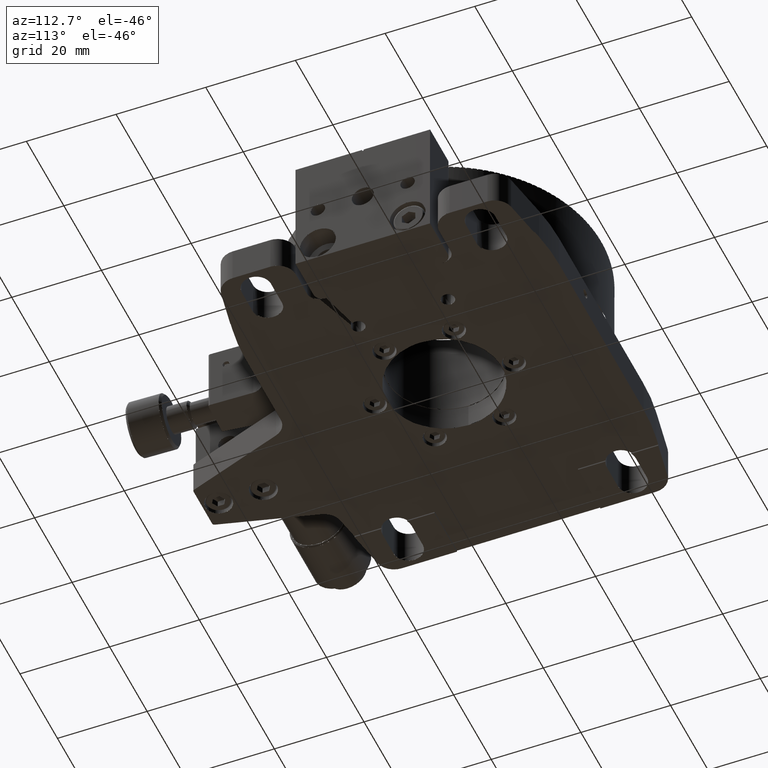
[diagram: clean part render]
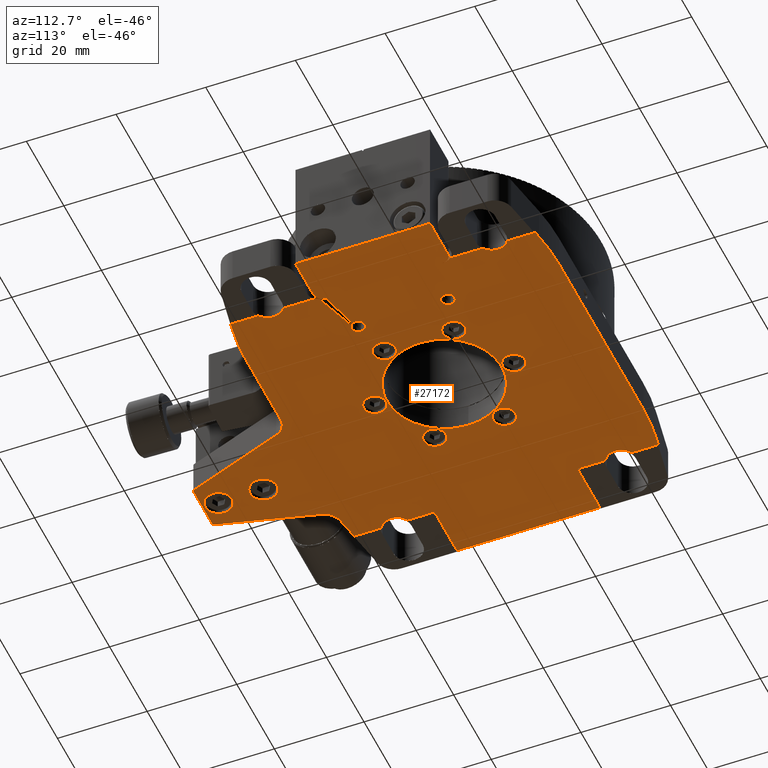
[diagram: same view with one face highlighted and labeled with its STEP entity id]
A machine part, auxiliary view. The second image highlights one B-rep face of the part: STEP entity #27172.
In plain terms, the highlighted face is a freeform B-spline surface patch.
Its self-contained STEP definition (entity closure, byte-faithful):
#560=FACE_BOUND('',#31850,.T.);
#561=FACE_BOUND('',#31851,.T.);
#562=FACE_BOUND('',#31852,.T.);
#563=FACE_BOUND('',#31853,.T.);
#564=FACE_BOUND('',#31854,.T.);
#565=FACE_BOUND('',#31855,.T.);
#566=FACE_BOUND('',#31856,.T.);
#567=FACE_BOUND('',#31857,.T.);
#568=FACE_BOUND('',#31858,.T.);
#569=FACE_BOUND('',#31859,.T.);
#570=FACE_BOUND('',#31860,.T.);
#1369=(
BOUNDED_CURVE()
B_SPLINE_CURVE(2,(#144541,#144542,#144543),.UNSPECIFIED.,.F.,.F.)
B_SPLINE_CURVE_WITH_KNOTS((3,3),(-8.89805459956614,0.),.UNSPECIFIED.)
CURVE()
GEOMETRIC_REPRESENTATION_ITEM()
RATIONAL_B_SPLINE_CURVE((1.,0.996043844385665,1.))
REPRESENTATION_ITEM('')
);
#1370=(
BOUNDED_CURVE()
B_SPLINE_CURVE(2,(#144544,#144545,#144546),.UNSPECIFIED.,.F.,.F.)
B_SPLINE_CURVE_WITH_KNOTS((3,3),(-8.89805459956614,0.),.UNSPECIFIED.)
CURVE()
GEOMETRIC_REPRESENTATION_ITEM()
RATIONAL_B_SPLINE_CURVE((1.,0.996043848151084,1.))
REPRESENTATION_ITEM('')
);
#1371=(
BOUNDED_CURVE()
B_SPLINE_CURVE(2,(#144551,#144552,#144553),.UNSPECIFIED.,.F.,.F.)
B_SPLINE_CURVE_WITH_KNOTS((3,3),(-8.89805459956614,0.),.UNSPECIFIED.)
CURVE()
GEOMETRIC_REPRESENTATION_ITEM()
RATIONAL_B_SPLINE_CURVE((1.,0.996043846268375,1.))
REPRESENTATION_ITEM('')
);
#1372=(
BOUNDED_CURVE()
B_SPLINE_CURVE(2,(#144554,#144555,#144556),.UNSPECIFIED.,.F.,.F.)
B_SPLINE_CURVE_WITH_KNOTS((3,3),(-8.89805459956614,0.),.UNSPECIFIED.)
CURVE()
GEOMETRIC_REPRESENTATION_ITEM()
RATIONAL_B_SPLINE_CURVE((1.,0.996043848151084,1.))
REPRESENTATION_ITEM('')
);
#1373=(
BOUNDED_CURVE()
B_SPLINE_CURVE(2,(#144565,#144566,#144567,#144568,#144569),
 .UNSPECIFIED.,.F.,.F.)
B_SPLINE_CURVE_WITH_KNOTS((3,2,3),(0.,3.54597041234983,7.09193997927442),
 .UNSPECIFIED.)
CURVE()
GEOMETRIC_REPRESENTATION_ITEM()
RATIONAL_B_SPLINE_CURVE((1.,0.854850414265111,1.,0.854850478454724,1.))
REPRESENTATION_ITEM('')
);
#1374=(
BOUNDED_CURVE()
B_SPLINE_CURVE(2,(#144570,#144571,#144572,#144573,#144574),
 .UNSPECIFIED.,.F.,.F.)
B_SPLINE_CURVE_WITH_KNOTS((3,2,3),(0.,3.54597083506244,7.09193997927442),
 .UNSPECIFIED.)
CURVE()
GEOMETRIC_REPRESENTATION_ITEM()
RATIONAL_B_SPLINE_CURVE((1.,0.854850414265111,1.,0.854850542644313,1.))
REPRESENTATION_ITEM('')
);
#1375=(
BOUNDED_CURVE()
B_SPLINE_CURVE(2,(#144579,#144580,#144581),.UNSPECIFIED.,.F.,.F.)
B_SPLINE_CURVE_WITH_KNOTS((3,3),(-2.5232060117038,0.),.UNSPECIFIED.)
CURVE()
GEOMETRIC_REPRESENTATION_ITEM()
RATIONAL_B_SPLINE_CURVE((1.,0.912870929175277,1.))
REPRESENTATION_ITEM('')
);
#1376=(
BOUNDED_CURVE()
B_SPLINE_CURVE(2,(#144582,#144583,#144584),.UNSPECIFIED.,.F.,.F.)
B_SPLINE_CURVE_WITH_KNOTS((3,3),(-2.5232060117038,0.),.UNSPECIFIED.)
CURVE()
GEOMETRIC_REPRESENTATION_ITEM()
RATIONAL_B_SPLINE_CURVE((1.,0.912870929175277,1.))
REPRESENTATION_ITEM('')
);
#1377=(
BOUNDED_CURVE()
B_SPLINE_CURVE(2,(#144585,#144586,#144587),.UNSPECIFIED.,.F.,.F.)
B_SPLINE_CURVE_WITH_KNOTS((3,3),(-3.14159265358959,0.),.UNSPECIFIED.)
CURVE()
GEOMETRIC_REPRESENTATION_ITEM()
RATIONAL_B_SPLINE_CURVE((1.,0.707106900395871,1.))
REPRESENTATION_ITEM('')
);
#1378=(
BOUNDED_CURVE()
B_SPLINE_CURVE(2,(#144588,#144589,#144590),.UNSPECIFIED.,.F.,.F.)
B_SPLINE_CURVE_WITH_KNOTS((3,3),(-3.14159265358959,0.),.UNSPECIFIED.)
CURVE()
GEOMETRIC_REPRESENTATION_ITEM()
RATIONAL_B_SPLINE_CURVE((1.,0.707106900395871,1.))
REPRESENTATION_ITEM('')
);
#1379=(
BOUNDED_CURVE()
B_SPLINE_CURVE(2,(#144603,#144604,#144605),.UNSPECIFIED.,.F.,.F.)
B_SPLINE_CURVE_WITH_KNOTS((3,3),(-3.14159265358999,0.),.UNSPECIFIED.)
CURVE()
GEOMETRIC_REPRESENTATION_ITEM()
RATIONAL_B_SPLINE_CURVE((1.,0.707106781186512,1.))
REPRESENTATION_ITEM('')
);
#1380=(
BOUNDED_CURVE()
B_SPLINE_CURVE(2,(#144606,#144607,#144608),.UNSPECIFIED.,.F.,.F.)
B_SPLINE_CURVE_WITH_KNOTS((3,3),(-3.14159265358999,0.),.UNSPECIFIED.)
CURVE()
GEOMETRIC_REPRESENTATION_ITEM()
RATIONAL_B_SPLINE_CURVE((1.,0.707106781186512,1.))
REPRESENTATION_ITEM('')
);
#1381=(
BOUNDED_CURVE()
B_SPLINE_CURVE(2,(#144609,#144610,#144611),.UNSPECIFIED.,.F.,.F.)
B_SPLINE_CURVE_WITH_KNOTS((3,3),(-2.5232060117038,0.),.UNSPECIFIED.)
CURVE()
GEOMETRIC_REPRESENTATION_ITEM()
RATIONAL_B_SPLINE_CURVE((1.,0.912870968911703,1.))
REPRESENTATION_ITEM('')
);
#1382=(
BOUNDED_CURVE()
B_SPLINE_CURVE(2,(#144612,#144613,#144614),.UNSPECIFIED.,.F.,.F.)
B_SPLINE_CURVE_WITH_KNOTS((3,3),(-2.5232060117038,0.),.UNSPECIFIED.)
CURVE()
GEOMETRIC_REPRESENTATION_ITEM()
RATIONAL_B_SPLINE_CURVE((1.,0.912870929175276,1.))
REPRESENTATION_ITEM('')
);
#1383=(
BOUNDED_CURVE()
B_SPLINE_CURVE(2,(#144619,#144620,#144621,#144622,#144623),
 .UNSPECIFIED.,.F.,.F.)
B_SPLINE_CURVE_WITH_KNOTS((3,2,3),(0.,3.54596998963722,7.09193997927444),
 .UNSPECIFIED.)
CURVE()
GEOMETRIC_REPRESENTATION_ITEM()
RATIONAL_B_SPLINE_CURVE((1.,0.85485041426511,1.,0.85485041426511,1.))
REPRESENTATION_ITEM('')
);
#1384=(
BOUNDED_CURVE()
B_SPLINE_CURVE(2,(#144624,#144625,#144626,#144627,#144628),
 .UNSPECIFIED.,.F.,.F.)
B_SPLINE_CURVE_WITH_KNOTS((3,2,3),(0.,3.54596998963722,7.09193997927444),
 .UNSPECIFIED.)
CURVE()
GEOMETRIC_REPRESENTATION_ITEM()
RATIONAL_B_SPLINE_CURVE((1.,0.85485041426511,1.,0.85485041426511,1.))
REPRESENTATION_ITEM('')
);
#1385=(
BOUNDED_CURVE()
B_SPLINE_CURVE(2,(#144637,#144638,#144639),.UNSPECIFIED.,.F.,.F.)
B_SPLINE_CURVE_WITH_KNOTS((3,3),(-8.89805459956592,0.),.UNSPECIFIED.)
CURVE()
GEOMETRIC_REPRESENTATION_ITEM()
RATIONAL_B_SPLINE_CURVE((1.,0.996043844385665,1.))
REPRESENTATION_ITEM('')
);
#1386=(
BOUNDED_CURVE()
B_SPLINE_CURVE(2,(#144640,#144641,#144642),.UNSPECIFIED.,.F.,.F.)
B_SPLINE_CURVE_WITH_KNOTS((3,3),(-8.89805459956592,0.),.UNSPECIFIED.)
CURVE()
GEOMETRIC_REPRESENTATION_ITEM()
RATIONAL_B_SPLINE_CURVE((1.,0.996043844385665,1.))
REPRESENTATION_ITEM('')
);
#1387=(
BOUNDED_CURVE()
B_SPLINE_CURVE(2,(#144647,#144648,#144649),.UNSPECIFIED.,.F.,.F.)
B_SPLINE_CURVE_WITH_KNOTS((3,3),(-4.88692190558402,0.),.UNSPECIFIED.)
CURVE()
GEOMETRIC_REPRESENTATION_ITEM()
RATIONAL_B_SPLINE_CURVE((1.,0.819152122726306,1.))
REPRESENTATION_ITEM('')
);
#1388=(
BOUNDED_CURVE()
B_SPLINE_CURVE(2,(#144650,#144651,#144652),.UNSPECIFIED.,.F.,.F.)
B_SPLINE_CURVE_WITH_KNOTS((3,3),(-4.88692190558402,0.),.UNSPECIFIED.)
CURVE()
GEOMETRIC_REPRESENTATION_ITEM()
RATIONAL_B_SPLINE_CURVE((1.,0.819152122726306,1.))
REPRESENTATION_ITEM('')
);
#1389=(
BOUNDED_CURVE()
B_SPLINE_CURVE(2,(#144657,#144658,#144659),.UNSPECIFIED.,.F.,.F.)
B_SPLINE_CURVE_WITH_KNOTS((3,3),(-0.610865238197978,0.),.UNSPECIFIED.)
CURVE()
GEOMETRIC_REPRESENTATION_ITEM()
RATIONAL_B_SPLINE_CURVE((1.,0.81915212272632,1.))
REPRESENTATION_ITEM('')
);
#1390=(
BOUNDED_CURVE()
B_SPLINE_CURVE(2,(#144660,#144661,#144662),.UNSPECIFIED.,.F.,.F.)
B_SPLINE_CURVE_WITH_KNOTS((3,3),(-0.610865238197978,0.),.UNSPECIFIED.)
CURVE()
GEOMETRIC_REPRESENTATION_ITEM()
RATIONAL_B_SPLINE_CURVE((1.,0.8191522011636,1.))
REPRESENTATION_ITEM('')
);
#1391=(
BOUNDED_CURVE()
B_SPLINE_CURVE(2,(#144667,#144668,#144669),.UNSPECIFIED.,.F.,.F.)
B_SPLINE_CURVE_WITH_KNOTS((3,3),(-0.654498469497924,0.),.UNSPECIFIED.)
CURVE()
GEOMETRIC_REPRESENTATION_ITEM()
RATIONAL_B_SPLINE_CURVE((1.,0.793353428646856,1.))
REPRESENTATION_ITEM('')
);
#1392=(
BOUNDED_CURVE()
B_SPLINE_CURVE(2,(#144670,#144671,#144672),.UNSPECIFIED.,.F.,.F.)
B_SPLINE_CURVE_WITH_KNOTS((3,3),(-0.654498469497924,0.),.UNSPECIFIED.)
CURVE()
GEOMETRIC_REPRESENTATION_ITEM()
RATIONAL_B_SPLINE_CURVE((1.,0.793353340291205,1.))
REPRESENTATION_ITEM('')
);
#1393=(
BOUNDED_CURVE()
B_SPLINE_CURVE(2,(#144677,#144678,#144679),.UNSPECIFIED.,.F.,.F.)
B_SPLINE_CURVE_WITH_KNOTS((3,3),(-4.52414338801775,0.),.UNSPECIFIED.)
CURVE()
GEOMETRIC_REPRESENTATION_ITEM()
RATIONAL_B_SPLINE_CURVE((1.,0.84431125118213,1.))
REPRESENTATION_ITEM('')
);
#1394=(
BOUNDED_CURVE()
B_SPLINE_CURVE(2,(#144680,#144681,#144682),.UNSPECIFIED.,.F.,.F.)
B_SPLINE_CURVE_WITH_KNOTS((3,3),(-4.52414338801775,0.),.UNSPECIFIED.)
CURVE()
GEOMETRIC_REPRESENTATION_ITEM()
RATIONAL_B_SPLINE_CURVE((1.,0.84431125118213,1.))
REPRESENTATION_ITEM('')
);
#1395=(
BOUNDED_CURVE()
B_SPLINE_CURVE(2,(#144691,#144692,#144693,#144694,#144695),
 .UNSPECIFIED.,.F.,.F.)
B_SPLINE_CURVE_WITH_KNOTS((3,2,3),(0.,3.54596998963722,7.09193997927444),
 .UNSPECIFIED.)
CURVE()
GEOMETRIC_REPRESENTATION_ITEM()
RATIONAL_B_SPLINE_CURVE((1.,0.85485041426511,1.,0.85485041426511,1.))
REPRESENTATION_ITEM('')
);
#1396=(
BOUNDED_CURVE()
B_SPLINE_CURVE(2,(#144696,#144697,#144698,#144699,#144700),
 .UNSPECIFIED.,.F.,.F.)
B_SPLINE_CURVE_WITH_KNOTS((3,2,3),(0.,3.54596998963722,7.09193997927444),
 .UNSPECIFIED.)
CURVE()
GEOMETRIC_REPRESENTATION_ITEM()
RATIONAL_B_SPLINE_CURVE((1.,0.85485041426511,1.,0.85485041426511,1.))
REPRESENTATION_ITEM('')
);
#1397=(
BOUNDED_CURVE()
B_SPLINE_CURVE(2,(#144721,#144722,#144723,#144724,#144725),
 .UNSPECIFIED.,.F.,.F.)
B_SPLINE_CURVE_WITH_KNOTS((3,2,3),(0.,3.54596998963721,7.09193997927442),
 .UNSPECIFIED.)
CURVE()
GEOMETRIC_REPRESENTATION_ITEM()
RATIONAL_B_SPLINE_CURVE((1.,0.854850478454724,1.,0.854850478454724,1.))
REPRESENTATION_ITEM('')
);
#1398=(
BOUNDED_CURVE()
B_SPLINE_CURVE(2,(#144726,#144727,#144728,#144729,#144730),
 .UNSPECIFIED.,.F.,.F.)
B_SPLINE_CURVE_WITH_KNOTS((3,2,3),(0.,3.54597041234983,7.09193997927442),
 .UNSPECIFIED.)
CURVE()
GEOMETRIC_REPRESENTATION_ITEM()
RATIONAL_B_SPLINE_CURVE((1.,0.854850478454724,1.,0.854850542644311,1.))
REPRESENTATION_ITEM('')
);
#1399=(
BOUNDED_CURVE()
B_SPLINE_CURVE(2,(#144735,#144736,#144737,#144738,#144739),
 .UNSPECIFIED.,.F.,.F.)
B_SPLINE_CURVE_WITH_KNOTS((3,2,3),(0.,2.35619449019234,4.71238898038469),
 .UNSPECIFIED.)
CURVE()
GEOMETRIC_REPRESENTATION_ITEM()
RATIONAL_B_SPLINE_CURVE((1.,0.707106781186548,1.,0.707106781186548,1.))
REPRESENTATION_ITEM('')
);
#1400=(
BOUNDED_CURVE()
B_SPLINE_CURVE(2,(#144740,#144741,#144742,#144743,#144744),
 .UNSPECIFIED.,.F.,.F.)
B_SPLINE_CURVE_WITH_KNOTS((3,2,3),(0.,2.35619449019234,4.71238898038469),
 .UNSPECIFIED.)
CURVE()
GEOMETRIC_REPRESENTATION_ITEM()
RATIONAL_B_SPLINE_CURVE((1.,0.707106781186548,1.,0.707106781186548,1.))
REPRESENTATION_ITEM('')
);
#1401=(
BOUNDED_CURVE()
B_SPLINE_CURVE(2,(#144745,#144746,#144747,#144748,#144749),
 .UNSPECIFIED.,.F.,.F.)
B_SPLINE_CURVE_WITH_KNOTS((3,2,3),(0.,2.35619449019234,4.71238898038469),
 .UNSPECIFIED.)
CURVE()
GEOMETRIC_REPRESENTATION_ITEM()
RATIONAL_B_SPLINE_CURVE((1.,0.707106781186548,1.,0.707106781186548,1.))
REPRESENTATION_ITEM('')
);
#1402=(
BOUNDED_CURVE()
B_SPLINE_CURVE(2,(#144750,#144751,#144752,#144753,#144754),
 .UNSPECIFIED.,.F.,.F.)
B_SPLINE_CURVE_WITH_KNOTS((3,2,3),(0.,2.35619449019234,4.71238898038469),
 .UNSPECIFIED.)
CURVE()
GEOMETRIC_REPRESENTATION_ITEM()
RATIONAL_B_SPLINE_CURVE((1.,0.707106781186548,1.,0.707106781186548,1.))
REPRESENTATION_ITEM('')
);
#1403=(
BOUNDED_CURVE()
B_SPLINE_CURVE(2,(#144755,#144756,#144757,#144758,#144759),
 .UNSPECIFIED.,.F.,.F.)
B_SPLINE_CURVE_WITH_KNOTS((3,2,3),(0.,2.35619449019234,4.71238898038469),
 .UNSPECIFIED.)
CURVE()
GEOMETRIC_REPRESENTATION_ITEM()
RATIONAL_B_SPLINE_CURVE((1.,0.707106781186548,1.,0.707106781186548,1.))
REPRESENTATION_ITEM('')
);
#1404=(
BOUNDED_CURVE()
B_SPLINE_CURVE(2,(#144760,#144761,#144762,#144763,#144764),
 .UNSPECIFIED.,.F.,.F.)
B_SPLINE_CURVE_WITH_KNOTS((3,2,3),(0.,2.35619449019234,4.71238898038469),
 .UNSPECIFIED.)
CURVE()
GEOMETRIC_REPRESENTATION_ITEM()
RATIONAL_B_SPLINE_CURVE((1.,0.707106781186548,1.,0.707106781186548,1.))
REPRESENTATION_ITEM('')
);
#1405=(
BOUNDED_CURVE()
B_SPLINE_CURVE(2,(#144765,#144766,#144767,#144768,#144769),
 .UNSPECIFIED.,.F.,.F.)
B_SPLINE_CURVE_WITH_KNOTS((3,2,3),(0.,2.35619449019234,4.71238898038469),
 .UNSPECIFIED.)
CURVE()
GEOMETRIC_REPRESENTATION_ITEM()
RATIONAL_B_SPLINE_CURVE((1.,0.707106781186548,1.,0.707106781186548,1.))
REPRESENTATION_ITEM('')
);
#1406=(
BOUNDED_CURVE()
B_SPLINE_CURVE(2,(#144770,#144771,#144772,#144773,#144774),
 .UNSPECIFIED.,.F.,.F.)
B_SPLINE_CURVE_WITH_KNOTS((3,2,3),(0.,2.35619449019234,4.71238898038469),
 .UNSPECIFIED.)
CURVE()
GEOMETRIC_REPRESENTATION_ITEM()
RATIONAL_B_SPLINE_CURVE((1.,0.707106781186548,1.,0.707106781186548,1.))
REPRESENTATION_ITEM('')
);
#1407=(
BOUNDED_CURVE()
B_SPLINE_CURVE(2,(#144775,#144776,#144777,#144778,#144779),
 .UNSPECIFIED.,.F.,.F.)
B_SPLINE_CURVE_WITH_KNOTS((3,2,3),(0.,3.92699081698724,7.85398163397448),
 .UNSPECIFIED.)
CURVE()
GEOMETRIC_REPRESENTATION_ITEM()
RATIONAL_B_SPLINE_CURVE((1.,0.707106781186548,1.,0.707106781186548,1.))
REPRESENTATION_ITEM('')
);
#1408=(
BOUNDED_CURVE()
B_SPLINE_CURVE(2,(#144780,#144781,#144782,#144783,#144784),
 .UNSPECIFIED.,.F.,.F.)
B_SPLINE_CURVE_WITH_KNOTS((3,2,3),(0.,3.92699081698724,7.85398163397448),
 .UNSPECIFIED.)
CURVE()
GEOMETRIC_REPRESENTATION_ITEM()
RATIONAL_B_SPLINE_CURVE((1.,0.707106781186548,1.,0.707106781186548,1.))
REPRESENTATION_ITEM('')
);
#1409=(
BOUNDED_CURVE()
B_SPLINE_CURVE(2,(#144785,#144786,#144787,#144788,#144789),
 .UNSPECIFIED.,.F.,.F.)
B_SPLINE_CURVE_WITH_KNOTS((3,2,3),(0.,3.92699081698724,7.85398163397448),
 .UNSPECIFIED.)
CURVE()
GEOMETRIC_REPRESENTATION_ITEM()
RATIONAL_B_SPLINE_CURVE((1.,0.707106781186548,1.,0.707106781186548,1.))
REPRESENTATION_ITEM('')
);
#1410=(
BOUNDED_CURVE()
B_SPLINE_CURVE(2,(#144790,#144791,#144792,#144793,#144794),
 .UNSPECIFIED.,.F.,.F.)
B_SPLINE_CURVE_WITH_KNOTS((3,2,3),(0.,3.92699081698724,7.85398163397448),
 .UNSPECIFIED.)
CURVE()
GEOMETRIC_REPRESENTATION_ITEM()
RATIONAL_B_SPLINE_CURVE((1.,0.707106781186548,1.,0.707106781186548,1.))
REPRESENTATION_ITEM('')
);
#1411=(
BOUNDED_CURVE()
B_SPLINE_CURVE(2,(#144795,#144796,#144797,#144798,#144799),
 .UNSPECIFIED.,.F.,.F.)
B_SPLINE_CURVE_WITH_KNOTS((3,2,3),(0.,3.92699081698724,7.85398163397448),
 .UNSPECIFIED.)
CURVE()
GEOMETRIC_REPRESENTATION_ITEM()
RATIONAL_B_SPLINE_CURVE((1.,0.707106781186548,1.,0.707106781186548,1.))
REPRESENTATION_ITEM('')
);
#1412=(
BOUNDED_CURVE()
B_SPLINE_CURVE(2,(#144800,#144801,#144802,#144803,#144804),
 .UNSPECIFIED.,.F.,.F.)
B_SPLINE_CURVE_WITH_KNOTS((3,2,3),(0.,3.92699081698724,7.85398163397448),
 .UNSPECIFIED.)
CURVE()
GEOMETRIC_REPRESENTATION_ITEM()
RATIONAL_B_SPLINE_CURVE((1.,0.707106781186548,1.,0.707106781186548,1.))
REPRESENTATION_ITEM('')
);
#1413=(
BOUNDED_CURVE()
B_SPLINE_CURVE(2,(#144805,#144806,#144807,#144808,#144809),
 .UNSPECIFIED.,.F.,.F.)
B_SPLINE_CURVE_WITH_KNOTS((3,2,3),(0.,3.92699081698724,7.85398163397448),
 .UNSPECIFIED.)
CURVE()
GEOMETRIC_REPRESENTATION_ITEM()
RATIONAL_B_SPLINE_CURVE((1.,0.707106781186548,1.,0.707106781186548,1.))
REPRESENTATION_ITEM('')
);
#1414=(
BOUNDED_CURVE()
B_SPLINE_CURVE(2,(#144810,#144811,#144812,#144813,#144814),
 .UNSPECIFIED.,.F.,.F.)
B_SPLINE_CURVE_WITH_KNOTS((3,2,3),(0.,3.92699081698724,7.85398163397448),
 .UNSPECIFIED.)
CURVE()
GEOMETRIC_REPRESENTATION_ITEM()
RATIONAL_B_SPLINE_CURVE((1.,0.707106781186548,1.,0.707106781186548,1.))
REPRESENTATION_ITEM('')
);
#1415=(
BOUNDED_CURVE()
B_SPLINE_CURVE(2,(#144815,#144816,#144817,#144818,#144819),
 .UNSPECIFIED.,.F.,.F.)
B_SPLINE_CURVE_WITH_KNOTS((3,2,3),(0.,3.92699081698724,7.85398163397448),
 .UNSPECIFIED.)
CURVE()
GEOMETRIC_REPRESENTATION_ITEM()
RATIONAL_B_SPLINE_CURVE((1.,0.707106781186548,1.,0.707106781186548,1.))
REPRESENTATION_ITEM('')
);
#1416=(
BOUNDED_CURVE()
B_SPLINE_CURVE(2,(#144820,#144821,#144822,#144823,#144824),
 .UNSPECIFIED.,.F.,.F.)
B_SPLINE_CURVE_WITH_KNOTS((3,2,3),(0.,3.92699081698724,7.85398163397448),
 .UNSPECIFIED.)
CURVE()
GEOMETRIC_REPRESENTATION_ITEM()
RATIONAL_B_SPLINE_CURVE((1.,0.707106781186548,1.,0.707106781186548,1.))
REPRESENTATION_ITEM('')
);
#1417=(
BOUNDED_CURVE()
B_SPLINE_CURVE(2,(#144825,#144826,#144827,#144828,#144829),
 .UNSPECIFIED.,.F.,.F.)
B_SPLINE_CURVE_WITH_KNOTS((3,2,3),(0.,3.92699081698724,7.85398163397448),
 .UNSPECIFIED.)
CURVE()
GEOMETRIC_REPRESENTATION_ITEM()
RATIONAL_B_SPLINE_CURVE((1.,0.707106781186548,1.,0.707106781186548,1.))
REPRESENTATION_ITEM('')
);
#1418=(
BOUNDED_CURVE()
B_SPLINE_CURVE(2,(#144830,#144831,#144832,#144833,#144834),
 .UNSPECIFIED.,.F.,.F.)
B_SPLINE_CURVE_WITH_KNOTS((3,2,3),(0.,3.92699081698724,7.85398163397448),
 .UNSPECIFIED.)
CURVE()
GEOMETRIC_REPRESENTATION_ITEM()
RATIONAL_B_SPLINE_CURVE((1.,0.707106781186548,1.,0.707106781186548,1.))
REPRESENTATION_ITEM('')
);
#1419=(
BOUNDED_CURVE()
B_SPLINE_CURVE(2,(#144835,#144836,#144837,#144838,#144839),
 .UNSPECIFIED.,.F.,.F.)
B_SPLINE_CURVE_WITH_KNOTS((3,2,3),(0.,3.92699081698724,7.85398163397448),
 .UNSPECIFIED.)
CURVE()
GEOMETRIC_REPRESENTATION_ITEM()
RATIONAL_B_SPLINE_CURVE((1.,0.707106781186548,1.,0.707106781186548,1.))
REPRESENTATION_ITEM('')
);
#1420=(
BOUNDED_CURVE()
B_SPLINE_CURVE(2,(#144840,#144841,#144842,#144843,#144844),
 .UNSPECIFIED.,.F.,.F.)
B_SPLINE_CURVE_WITH_KNOTS((3,2,3),(0.,3.92699081698724,7.85398163397448),
 .UNSPECIFIED.)
CURVE()
GEOMETRIC_REPRESENTATION_ITEM()
RATIONAL_B_SPLINE_CURVE((1.,0.707106781186548,1.,0.707106781186548,1.))
REPRESENTATION_ITEM('')
);
#1421=(
BOUNDED_CURVE()
B_SPLINE_CURVE(2,(#144845,#144846,#144847,#144848,#144849),
 .UNSPECIFIED.,.F.,.F.)
B_SPLINE_CURVE_WITH_KNOTS((3,2,3),(0.,3.92699081698724,7.85398163397448),
 .UNSPECIFIED.)
CURVE()
GEOMETRIC_REPRESENTATION_ITEM()
RATIONAL_B_SPLINE_CURVE((1.,0.707106781186548,1.,0.707106781186548,1.))
REPRESENTATION_ITEM('')
);
#1422=(
BOUNDED_CURVE()
B_SPLINE_CURVE(2,(#144850,#144851,#144852,#144853,#144854),
 .UNSPECIFIED.,.F.,.F.)
B_SPLINE_CURVE_WITH_KNOTS((3,2,3),(0.,3.92699081698724,7.85398163397448),
 .UNSPECIFIED.)
CURVE()
GEOMETRIC_REPRESENTATION_ITEM()
RATIONAL_B_SPLINE_CURVE((1.,0.707106781186548,1.,0.707106781186548,1.))
REPRESENTATION_ITEM('')
);
#1423=(
BOUNDED_CURVE()
B_SPLINE_CURVE(2,(#144855,#144856,#144857,#144858,#144859),
 .UNSPECIFIED.,.F.,.F.)
B_SPLINE_CURVE_WITH_KNOTS((3,2,3),(0.,3.92699081698724,7.85398163397448),
 .UNSPECIFIED.)
CURVE()
GEOMETRIC_REPRESENTATION_ITEM()
RATIONAL_B_SPLINE_CURVE((1.,0.707106781186548,1.,0.707106781186548,1.))
REPRESENTATION_ITEM('')
);
#1424=(
BOUNDED_CURVE()
B_SPLINE_CURVE(2,(#144860,#144861,#144862,#144863,#144864),
 .UNSPECIFIED.,.F.,.F.)
B_SPLINE_CURVE_WITH_KNOTS((3,2,3),(0.,3.92699081698724,7.85398163397448),
 .UNSPECIFIED.)
CURVE()
GEOMETRIC_REPRESENTATION_ITEM()
RATIONAL_B_SPLINE_CURVE((1.,0.707106781186548,1.,0.707106781186548,1.))
REPRESENTATION_ITEM('')
);
#1425=(
BOUNDED_CURVE()
B_SPLINE_CURVE(2,(#144865,#144866,#144867,#144868,#144869),
 .UNSPECIFIED.,.F.,.F.)
B_SPLINE_CURVE_WITH_KNOTS((3,2,3),(0.,3.92699081698724,7.85398163397448),
 .UNSPECIFIED.)
CURVE()
GEOMETRIC_REPRESENTATION_ITEM()
RATIONAL_B_SPLINE_CURVE((1.,0.707106781186548,1.,0.707106781186548,1.))
REPRESENTATION_ITEM('')
);
#1426=(
BOUNDED_CURVE()
B_SPLINE_CURVE(2,(#144870,#144871,#144872,#144873,#144874),
 .UNSPECIFIED.,.F.,.F.)
B_SPLINE_CURVE_WITH_KNOTS((3,2,3),(0.,3.92699081698724,7.85398163397448),
 .UNSPECIFIED.)
CURVE()
GEOMETRIC_REPRESENTATION_ITEM()
RATIONAL_B_SPLINE_CURVE((1.,0.707106781186548,1.,0.707106781186548,1.))
REPRESENTATION_ITEM('')
);
#1427=(
BOUNDED_CURVE()
B_SPLINE_CURVE(2,(#144875,#144876,#144877,#144878,#144879),
 .UNSPECIFIED.,.F.,.F.)
B_SPLINE_CURVE_WITH_KNOTS((3,2,3),(0.,3.92699081698724,7.85398163397448),
 .UNSPECIFIED.)
CURVE()
GEOMETRIC_REPRESENTATION_ITEM()
RATIONAL_B_SPLINE_CURVE((1.,0.707106781186548,1.,0.707106781186548,1.))
REPRESENTATION_ITEM('')
);
#1428=(
BOUNDED_CURVE()
B_SPLINE_CURVE(2,(#144880,#144881,#144882,#144883,#144884),
 .UNSPECIFIED.,.F.,.F.)
B_SPLINE_CURVE_WITH_KNOTS((3,2,3),(0.,3.92699081698724,7.85398163397448),
 .UNSPECIFIED.)
CURVE()
GEOMETRIC_REPRESENTATION_ITEM()
RATIONAL_B_SPLINE_CURVE((1.,0.707106781186548,1.,0.707106781186548,1.))
REPRESENTATION_ITEM('')
);
#1429=(
BOUNDED_CURVE()
B_SPLINE_CURVE(2,(#144885,#144886,#144887,#144888,#144889),
 .UNSPECIFIED.,.F.,.F.)
B_SPLINE_CURVE_WITH_KNOTS((3,2,3),(0.,3.92699081698724,7.85398163397448),
 .UNSPECIFIED.)
CURVE()
GEOMETRIC_REPRESENTATION_ITEM()
RATIONAL_B_SPLINE_CURVE((1.,0.707106781186548,1.,0.707106781186548,1.))
REPRESENTATION_ITEM('')
);
#1430=(
BOUNDED_CURVE()
B_SPLINE_CURVE(2,(#144890,#144891,#144892,#144893,#144894),
 .UNSPECIFIED.,.F.,.F.)
B_SPLINE_CURVE_WITH_KNOTS((3,2,3),(0.,3.92699081698724,7.85398163397448),
 .UNSPECIFIED.)
CURVE()
GEOMETRIC_REPRESENTATION_ITEM()
RATIONAL_B_SPLINE_CURVE((1.,0.707106781186548,1.,0.707106781186548,1.))
REPRESENTATION_ITEM('')
);
#1431=(
BOUNDED_CURVE()
B_SPLINE_CURVE(2,(#144895,#144896,#144897,#144898,#144899),
 .UNSPECIFIED.,.F.,.F.)
B_SPLINE_CURVE_WITH_KNOTS((3,2,3),(0.,20.1061929829747,40.2123859659494),
 .UNSPECIFIED.)
CURVE()
GEOMETRIC_REPRESENTATION_ITEM()
RATIONAL_B_SPLINE_CURVE((1.,0.707106781186548,1.,0.707106781186548,1.))
REPRESENTATION_ITEM('')
);
#1432=(
BOUNDED_CURVE()
B_SPLINE_CURVE(2,(#144900,#144901,#144902,#144903,#144904),
 .UNSPECIFIED.,.F.,.F.)
B_SPLINE_CURVE_WITH_KNOTS((3,2,3),(0.,20.1061929829747,40.2123859659494),
 .UNSPECIFIED.)
CURVE()
GEOMETRIC_REPRESENTATION_ITEM()
RATIONAL_B_SPLINE_CURVE((1.,0.707106781186548,1.,0.707106781186548,1.))
REPRESENTATION_ITEM('')
);
#1433=(
BOUNDED_CURVE()
B_SPLINE_CURVE(2,(#144905,#144906,#144907,#144908,#144909),
 .UNSPECIFIED.,.F.,.F.)
B_SPLINE_CURVE_WITH_KNOTS((3,2,3),(40.2123859659494,60.318578948924,80.4247719318987),
 .UNSPECIFIED.)
CURVE()
GEOMETRIC_REPRESENTATION_ITEM()
RATIONAL_B_SPLINE_CURVE((1.,0.707106781186548,1.,0.707106781186548,1.))
REPRESENTATION_ITEM('')
);
#1434=(
BOUNDED_CURVE()
B_SPLINE_CURVE(2,(#144910,#144911,#144912,#144913,#144914),
 .UNSPECIFIED.,.F.,.F.)
B_SPLINE_CURVE_WITH_KNOTS((3,2,3),(40.2123859659494,60.318578948924,80.4247719318987),
 .UNSPECIFIED.)
CURVE()
GEOMETRIC_REPRESENTATION_ITEM()
RATIONAL_B_SPLINE_CURVE((1.,0.707106781186548,1.,0.707106781186548,1.))
REPRESENTATION_ITEM('')
);
#1435=(
BOUNDED_CURVE()
B_SPLINE_CURVE(2,(#144915,#144916,#144917,#144918,#144919),
 .UNSPECIFIED.,.F.,.F.)
B_SPLINE_CURVE_WITH_KNOTS((3,2,3),(0.,4.71238898038469,9.42477796076938),
 .UNSPECIFIED.)
CURVE()
GEOMETRIC_REPRESENTATION_ITEM()
RATIONAL_B_SPLINE_CURVE((1.,0.707106781186548,1.,0.707106781186548,1.))
REPRESENTATION_ITEM('')
);
#1436=(
BOUNDED_CURVE()
B_SPLINE_CURVE(2,(#144920,#144921,#144922,#144923,#144924),
 .UNSPECIFIED.,.F.,.F.)
B_SPLINE_CURVE_WITH_KNOTS((3,2,3),(0.,4.71238898038469,9.42477796076938),
 .UNSPECIFIED.)
CURVE()
GEOMETRIC_REPRESENTATION_ITEM()
RATIONAL_B_SPLINE_CURVE((1.,0.707106781186548,1.,0.707106781186548,1.))
REPRESENTATION_ITEM('')
);
#1437=(
BOUNDED_CURVE()
B_SPLINE_CURVE(2,(#144925,#144926,#144927,#144928,#144929),
 .UNSPECIFIED.,.F.,.F.)
B_SPLINE_CURVE_WITH_KNOTS((3,2,3),(0.,4.71238898038469,9.42477796076938),
 .UNSPECIFIED.)
CURVE()
GEOMETRIC_REPRESENTATION_ITEM()
RATIONAL_B_SPLINE_CURVE((1.,0.707106781186548,1.,0.707106781186548,1.))
REPRESENTATION_ITEM('')
);
#1438=(
BOUNDED_CURVE()
B_SPLINE_CURVE(2,(#144930,#144931,#144932,#144933,#144934),
 .UNSPECIFIED.,.F.,.F.)
B_SPLINE_CURVE_WITH_KNOTS((3,2,3),(0.,4.71238898038469,9.42477796076938),
 .UNSPECIFIED.)
CURVE()
GEOMETRIC_REPRESENTATION_ITEM()
RATIONAL_B_SPLINE_CURVE((1.,0.707106781186548,1.,0.707106781186548,1.))
REPRESENTATION_ITEM('')
);
#1439=(
BOUNDED_CURVE()
B_SPLINE_CURVE(2,(#144935,#144936,#144937),.UNSPECIFIED.,.F.,.F.)
B_SPLINE_CURVE_WITH_KNOTS((3,3),(0.,4.71238898038469),.UNSPECIFIED.)
CURVE()
GEOMETRIC_REPRESENTATION_ITEM()
RATIONAL_B_SPLINE_CURVE((1.,0.707106781186548,1.))
REPRESENTATION_ITEM('')
);
#1440=(
BOUNDED_CURVE()
B_SPLINE_CURVE(2,(#144938,#144939,#144940),.UNSPECIFIED.,.F.,.F.)
B_SPLINE_CURVE_WITH_KNOTS((3,3),(0.,4.71238898038469),.UNSPECIFIED.)
CURVE()
GEOMETRIC_REPRESENTATION_ITEM()
RATIONAL_B_SPLINE_CURVE((1.,0.707106781186548,1.))
REPRESENTATION_ITEM('')
);
#1441=(
BOUNDED_CURVE()
B_SPLINE_CURVE(2,(#144941,#144942,#144943,#144944,#144945,#144946,#144947,
#144948,#144949),.UNSPECIFIED.,.F.,.F.)
B_SPLINE_CURVE_WITH_KNOTS((3,2,2,2,3),(0.,3.53429173528852,7.06858347057703,
10.6028752058656,14.1371669411541),.UNSPECIFIED.)
CURVE()
GEOMETRIC_REPRESENTATION_ITEM()
RATIONAL_B_SPLINE_CURVE((1.,0.831469612302545,1.,0.831469612302545,1.,0.831469612302545,
1.,0.831469612302545,1.))
REPRESENTATION_ITEM('')
);
#1442=(
BOUNDED_CURVE()
B_SPLINE_CURVE(2,(#144950,#144951,#144952,#144953,#144954,#144955,#144956,
#144957,#144958),.UNSPECIFIED.,.F.,.F.)
B_SPLINE_CURVE_WITH_KNOTS((3,2,2,2,3),(0.,3.53429173528852,7.06858347057703,
10.6028752058656,14.1371669411541),.UNSPECIFIED.)
CURVE()
GEOMETRIC_REPRESENTATION_ITEM()
RATIONAL_B_SPLINE_CURVE((1.,0.831469612302545,1.,0.831469612302545,1.,0.831469612302545,
1.,0.831469612302545,1.))
REPRESENTATION_ITEM('')
);
#27172=ADVANCED_FACE('',(#29502,#560,#561,#562,#563,#564,#565,#566,#567,
#568,#569,#570),#129646,.T.);
#29502=FACE_OUTER_BOUND('',#31849,.T.);
#31849=EDGE_LOOP('',(#35317,#35318,#35319,#35320,#35321,#35322,#35323,#35324,
#35325,#35326,#35327,#35328,#35329,#35330,#35331,#35332,#35333,#35334,#35335,
#35336,#35337,#35338,#35339,#35340,#35341,#35342,#35343,#35344,#35345,#35346,
#35347,#35348,#35349,#35350,#35351,#35352,#35353,#35354));
#31850=EDGE_LOOP('',(#35355,#35356));
#31851=EDGE_LOOP('',(#35357,#35358));
#31852=EDGE_LOOP('',(#35359,#35360));
#31853=EDGE_LOOP('',(#35361,#35362));
#31854=EDGE_LOOP('',(#35363,#35364));
#31855=EDGE_LOOP('',(#35365,#35366));
#31856=EDGE_LOOP('',(#35367,#35368));
#31857=EDGE_LOOP('',(#35369,#35370));
#31858=EDGE_LOOP('',(#35371,#35372));
#31859=EDGE_LOOP('',(#35373,#35374));
#31860=EDGE_LOOP('',(#35375,#35376));
#35317=ORIENTED_EDGE('',*,*,#85201,.T.);
#35318=ORIENTED_EDGE('',*,*,#85202,.T.);
#35319=ORIENTED_EDGE('',*,*,#85203,.T.);
#35320=ORIENTED_EDGE('',*,*,#85204,.T.);
#35321=ORIENTED_EDGE('',*,*,#85205,.T.);
#35322=ORIENTED_EDGE('',*,*,#85206,.T.);
#35323=ORIENTED_EDGE('',*,*,#85207,.T.);
#35324=ORIENTED_EDGE('',*,*,#85208,.T.);
#35325=ORIENTED_EDGE('',*,*,#85209,.T.);
#35326=ORIENTED_EDGE('',*,*,#85210,.T.);
#35327=ORIENTED_EDGE('',*,*,#85211,.T.);
#35328=ORIENTED_EDGE('',*,*,#85212,.T.);
#35329=ORIENTED_EDGE('',*,*,#85213,.T.);
#35330=ORIENTED_EDGE('',*,*,#85214,.T.);
#35331=ORIENTED_EDGE('',*,*,#85215,.T.);
#35332=ORIENTED_EDGE('',*,*,#85216,.T.);
#35333=ORIENTED_EDGE('',*,*,#85217,.T.);
#35334=ORIENTED_EDGE('',*,*,#85218,.T.);
#35335=ORIENTED_EDGE('',*,*,#85219,.T.);
#35336=ORIENTED_EDGE('',*,*,#85220,.T.);
#35337=ORIENTED_EDGE('',*,*,#85221,.T.);
#35338=ORIENTED_EDGE('',*,*,#85222,.T.);
#35339=ORIENTED_EDGE('',*,*,#85223,.T.);
#35340=ORIENTED_EDGE('',*,*,#85224,.T.);
#35341=ORIENTED_EDGE('',*,*,#85225,.T.);
#35342=ORIENTED_EDGE('',*,*,#85226,.T.);
#35343=ORIENTED_EDGE('',*,*,#85227,.T.);
#35344=ORIENTED_EDGE('',*,*,#85228,.T.);
#35345=ORIENTED_EDGE('',*,*,#85229,.T.);
#35346=ORIENTED_EDGE('',*,*,#85230,.T.);
#35347=ORIENTED_EDGE('',*,*,#85231,.T.);
#35348=ORIENTED_EDGE('',*,*,#85232,.T.);
#35349=ORIENTED_EDGE('',*,*,#85233,.T.);
#35350=ORIENTED_EDGE('',*,*,#85234,.T.);
#35351=ORIENTED_EDGE('',*,*,#85235,.T.);
#35352=ORIENTED_EDGE('',*,*,#85236,.T.);
#35353=ORIENTED_EDGE('',*,*,#85237,.T.);
#35354=ORIENTED_EDGE('',*,*,#85238,.T.);
#35355=ORIENTED_EDGE('',*,*,#85239,.T.);
#35356=ORIENTED_EDGE('',*,*,#85240,.T.);
#35357=ORIENTED_EDGE('',*,*,#85241,.T.);
#35358=ORIENTED_EDGE('',*,*,#85242,.T.);
#35359=ORIENTED_EDGE('',*,*,#85243,.T.);
#35360=ORIENTED_EDGE('',*,*,#85244,.T.);
#35361=ORIENTED_EDGE('',*,*,#85245,.T.);
#35362=ORIENTED_EDGE('',*,*,#85246,.T.);
#35363=ORIENTED_EDGE('',*,*,#85247,.T.);
#35364=ORIENTED_EDGE('',*,*,#85248,.T.);
#35365=ORIENTED_EDGE('',*,*,#85249,.T.);
#35366=ORIENTED_EDGE('',*,*,#85250,.T.);
#35367=ORIENTED_EDGE('',*,*,#85251,.T.);
#35368=ORIENTED_EDGE('',*,*,#85252,.T.);
#35369=ORIENTED_EDGE('',*,*,#85253,.T.);
#35370=ORIENTED_EDGE('',*,*,#85254,.T.);
#35371=ORIENTED_EDGE('',*,*,#85255,.T.);
#35372=ORIENTED_EDGE('',*,*,#85256,.T.);
#35373=ORIENTED_EDGE('',*,*,#85257,.T.);
#35374=ORIENTED_EDGE('',*,*,#85258,.T.);
#35375=ORIENTED_EDGE('',*,*,#85259,.T.);
#35376=ORIENTED_EDGE('',*,*,#85260,.T.);
#47991=PCURVE('',#129646,#60665);
#47992=PCURVE('',#129646,#60666);
#47993=PCURVE('',#129646,#60667);
#47994=PCURVE('',#129646,#60668);
#47995=PCURVE('',#129646,#60669);
#47996=PCURVE('',#129646,#60670);
#47997=PCURVE('',#129646,#60671);
#47998=PCURVE('',#129646,#60672);
#47999=PCURVE('',#129646,#60673);
#48000=PCURVE('',#129646,#60674);
#48001=PCURVE('',#129646,#60675);
#48002=PCURVE('',#129646,#60676);
#48003=PCURVE('',#129646,#60677);
#48004=PCURVE('',#129646,#60678);
#48005=PCURVE('',#129646,#60679);
#48006=PCURVE('',#129646,#60680);
#48007=PCURVE('',#129646,#60681);
#48008=PCURVE('',#129646,#60682);
#48009=PCURVE('',#129646,#60683);
#48010=PCURVE('',#129646,#60684);
#48011=PCURVE('',#129646,#60685);
#48012=PCURVE('',#129646,#60686);
#48013=PCURVE('',#129646,#60687);
#48014=PCURVE('',#129646,#60688);
#48015=PCURVE('',#129646,#60689);
#48016=PCURVE('',#129646,#60690);
#48017=PCURVE('',#129646,#60691);
#48018=PCURVE('',#129646,#60692);
#48019=PCURVE('',#129646,#60693);
#48020=PCURVE('',#129646,#60694);
#48021=PCURVE('',#129646,#60695);
#48022=PCURVE('',#129646,#60696);
#48023=PCURVE('',#129646,#60697);
#48024=PCURVE('',#129646,#60698);
#48025=PCURVE('',#129646,#60699);
#48026=PCURVE('',#129646,#60700);
#48027=PCURVE('',#129646,#60701);
#48028=PCURVE('',#129646,#60702);
#48029=PCURVE('',#129646,#60703);
#48030=PCURVE('',#129646,#60704);
#48031=PCURVE('',#129646,#60705);
#48032=PCURVE('',#129646,#60706);
#48033=PCURVE('',#129646,#60707);
#48034=PCURVE('',#129646,#60708);
#48035=PCURVE('',#129646,#60709);
#48036=PCURVE('',#129646,#60710);
#48037=PCURVE('',#129646,#60711);
#48038=PCURVE('',#129646,#60712);
#48039=PCURVE('',#129646,#60713);
#48040=PCURVE('',#129646,#60714);
#48041=PCURVE('',#129646,#60715);
#48042=PCURVE('',#129646,#60716);
#48043=PCURVE('',#129646,#60717);
#48044=PCURVE('',#129646,#60718);
#48045=PCURVE('',#129646,#60719);
#48046=PCURVE('',#129646,#60720);
#48047=PCURVE('',#129646,#60721);
#48048=PCURVE('',#129646,#60722);
#48049=PCURVE('',#129646,#60723);
#48050=PCURVE('',#129646,#60724);
#60665=DEFINITIONAL_REPRESENTATION('',(#97875),#230981);
#60666=DEFINITIONAL_REPRESENTATION('',(#1370),#230981);
#60667=DEFINITIONAL_REPRESENTATION('',(#97877),#230981);
#60668=DEFINITIONAL_REPRESENTATION('',(#1372),#230981);
#60669=DEFINITIONAL_REPRESENTATION('',(#97879),#230981);
#60670=DEFINITIONAL_REPRESENTATION('',(#97881),#230981);
#60671=DEFINITIONAL_REPRESENTATION('',(#1374),#230981);
#60672=DEFINITIONAL_REPRESENTATION('',(#97883),#230981);
#60673=DEFINITIONAL_REPRESENTATION('',(#1376),#230981);
#60674=DEFINITIONAL_REPRESENTATION('',(#1378),#230981);
#60675=DEFINITIONAL_REPRESENTATION('',(#97885),#230981);
#60676=DEFINITIONAL_REPRESENTATION('',(#97887),#230981);
#60677=DEFINITIONAL_REPRESENTATION('',(#97889),#230981);
#60678=DEFINITIONAL_REPRESENTATION('',(#1380),#230981);
#60679=DEFINITIONAL_REPRESENTATION('',(#1382),#230981);
#60680=DEFINITIONAL_REPRESENTATION('',(#97891),#230981);
#60681=DEFINITIONAL_REPRESENTATION('',(#1384),#230981);
#60682=DEFINITIONAL_REPRESENTATION('',(#97893),#230981);
#60683=DEFINITIONAL_REPRESENTATION('',(#97895),#230981);
#60684=DEFINITIONAL_REPRESENTATION('',(#1386),#230981);
#60685=DEFINITIONAL_REPRESENTATION('',(#97897),#230981);
#60686=DEFINITIONAL_REPRESENTATION('',(#1388),#230981);
#60687=DEFINITIONAL_REPRESENTATION('',(#97899),#230981);
#60688=DEFINITIONAL_REPRESENTATION('',(#1390),#230981);
#60689=DEFINITIONAL_REPRESENTATION('',(#97901),#230981);
#60690=DEFINITIONAL_REPRESENTATION('',(#1392),#230981);
#60691=DEFINITIONAL_REPRESENTATION('',(#97903),#230981);
#60692=DEFINITIONAL_REPRESENTATION('',(#1394),#230981);
#60693=DEFINITIONAL_REPRESENTATION('',(#97905),#230981);
#60694=DEFINITIONAL_REPRESENTATION('',(#97907),#230981);
#60695=DEFINITIONAL_REPRESENTATION('',(#1396),#230981);
#60696=DEFINITIONAL_REPRESENTATION('',(#97909),#230981);
#60697=DEFINITIONAL_REPRESENTATION('',(#97911),#230981);
#60698=DEFINITIONAL_REPRESENTATION('',(#97913),#230981);
#60699=DEFINITIONAL_REPRESENTATION('',(#97915),#230981);
#60700=DEFINITIONAL_REPRESENTATION('',(#97917),#230981);
#60701=DEFINITIONAL_REPRESENTATION('',(#1398),#230981);
#60702=DEFINITIONAL_REPRESENTATION('',(#97919),#230981);
#60703=DEFINITIONAL_REPRESENTATION('',(#1400),#230981);
#60704=DEFINITIONAL_REPRESENTATION('',(#1402),#230981);
#60705=DEFINITIONAL_REPRESENTATION('',(#1404),#230981);
#60706=DEFINITIONAL_REPRESENTATION('',(#1406),#230981);
#60707=DEFINITIONAL_REPRESENTATION('',(#1408),#230981);
#60708=DEFINITIONAL_REPRESENTATION('',(#1410),#230981);
#60709=DEFINITIONAL_REPRESENTATION('',(#1412),#230981);
#60710=DEFINITIONAL_REPRESENTATION('',(#1414),#230981);
#60711=DEFINITIONAL_REPRESENTATION('',(#1416),#230981);
#60712=DEFINITIONAL_REPRESENTATION('',(#1418),#230981);
#60713=DEFINITIONAL_REPRESENTATION('',(#1420),#230981);
#60714=DEFINITIONAL_REPRESENTATION('',(#1422),#230981);
#60715=DEFINITIONAL_REPRESENTATION('',(#1424),#230981);
#60716=DEFINITIONAL_REPRESENTATION('',(#1426),#230981);
#60717=DEFINITIONAL_REPRESENTATION('',(#1428),#230981);
#60718=DEFINITIONAL_REPRESENTATION('',(#1430),#230981);
#60719=DEFINITIONAL_REPRESENTATION('',(#1432),#230981);
#60720=DEFINITIONAL_REPRESENTATION('',(#1434),#230981);
#60721=DEFINITIONAL_REPRESENTATION('',(#1436),#230981);
#60722=DEFINITIONAL_REPRESENTATION('',(#1438),#230981);
#60723=DEFINITIONAL_REPRESENTATION('',(#1440),#230981);
#60724=DEFINITIONAL_REPRESENTATION('',(#1442),#230981);
#73101=SURFACE_CURVE('',#97874,(#47991),.PCURVE_S1.);
#73102=SURFACE_CURVE('',#1369,(#47992),.PCURVE_S1.);
#73103=SURFACE_CURVE('',#97876,(#47993),.PCURVE_S1.);
#73104=SURFACE_CURVE('',#1371,(#47994),.PCURVE_S1.);
#73105=SURFACE_CURVE('',#97878,(#47995),.PCURVE_S1.);
#73106=SURFACE_CURVE('',#97880,(#47996),.PCURVE_S1.);
#73107=SURFACE_CURVE('',#1373,(#47997),.PCURVE_S1.);
#73108=SURFACE_CURVE('',#97882,(#47998),.PCURVE_S1.);
#73109=SURFACE_CURVE('',#1375,(#47999),.PCURVE_S1.);
#73110=SURFACE_CURVE('',#1377,(#48000),.PCURVE_S1.);
#73111=SURFACE_CURVE('',#97884,(#48001),.PCURVE_S1.);
#73112=SURFACE_CURVE('',#97886,(#48002),.PCURVE_S1.);
#73113=SURFACE_CURVE('',#97888,(#48003),.PCURVE_S1.);
#73114=SURFACE_CURVE('',#1379,(#48004),.PCURVE_S1.);
#73115=SURFACE_CURVE('',#1381,(#48005),.PCURVE_S1.);
#73116=SURFACE_CURVE('',#97890,(#48006),.PCURVE_S1.);
#73117=SURFACE_CURVE('',#1383,(#48007),.PCURVE_S1.);
#73118=SURFACE_CURVE('',#97892,(#48008),.PCURVE_S1.);
#73119=SURFACE_CURVE('',#97894,(#48009),.PCURVE_S1.);
#73120=SURFACE_CURVE('',#1385,(#48010),.PCURVE_S1.);
#73121=SURFACE_CURVE('',#97896,(#48011),.PCURVE_S1.);
#73122=SURFACE_CURVE('',#1387,(#48012),.PCURVE_S1.);
#73123=SURFACE_CURVE('',#97898,(#48013),.PCURVE_S1.);
#73124=SURFACE_CURVE('',#1389,(#48014),.PCURVE_S1.);
#73125=SURFACE_CURVE('',#97900,(#48015),.PCURVE_S1.);
#73126=SURFACE_CURVE('',#1391,(#48016),.PCURVE_S1.);
#73127=SURFACE_CURVE('',#97902,(#48017),.PCURVE_S1.);
#73128=SURFACE_CURVE('',#1393,(#48018),.PCURVE_S1.);
#73129=SURFACE_CURVE('',#97904,(#48019),.PCURVE_S1.);
#73130=SURFACE_CURVE('',#97906,(#48020),.PCURVE_S1.);
#73131=SURFACE_CURVE('',#1395,(#48021),.PCURVE_S1.);
#73132=SURFACE_CURVE('',#97908,(#48022),.PCURVE_S1.);
#73133=SURFACE_CURVE('',#97910,(#48023),.PCURVE_S1.);
#73134=SURFACE_CURVE('',#97912,(#48024),.PCURVE_S1.);
#73135=SURFACE_CURVE('',#97914,(#48025),.PCURVE_S1.);
#73136=SURFACE_CURVE('',#97916,(#48026),.PCURVE_S1.);
#73137=SURFACE_CURVE('',#1397,(#48027),.PCURVE_S1.);
#73138=SURFACE_CURVE('',#97918,(#48028),.PCURVE_S1.);
#73139=SURFACE_CURVE('',#1399,(#48029),.PCURVE_S1.);
#73140=SURFACE_CURVE('',#1401,(#48030),.PCURVE_S1.);
#73141=SURFACE_CURVE('',#1403,(#48031),.PCURVE_S1.);
#73142=SURFACE_CURVE('',#1405,(#48032),.PCURVE_S1.);
#73143=SURFACE_CURVE('',#1407,(#48033),.PCURVE_S1.);
#73144=SURFACE_CURVE('',#1409,(#48034),.PCURVE_S1.);
#73145=SURFACE_CURVE('',#1411,(#48035),.PCURVE_S1.);
#73146=SURFACE_CURVE('',#1413,(#48036),.PCURVE_S1.);
#73147=SURFACE_CURVE('',#1415,(#48037),.PCURVE_S1.);
#73148=SURFACE_CURVE('',#1417,(#48038),.PCURVE_S1.);
#73149=SURFACE_CURVE('',#1419,(#48039),.PCURVE_S1.);
#73150=SURFACE_CURVE('',#1421,(#48040),.PCURVE_S1.);
#73151=SURFACE_CURVE('',#1423,(#48041),.PCURVE_S1.);
#73152=SURFACE_CURVE('',#1425,(#48042),.PCURVE_S1.);
#73153=SURFACE_CURVE('',#1427,(#48043),.PCURVE_S1.);
#73154=SURFACE_CURVE('',#1429,(#48044),.PCURVE_S1.);
#73155=SURFACE_CURVE('',#1431,(#48045),.PCURVE_S1.);
#73156=SURFACE_CURVE('',#1433,(#48046),.PCURVE_S1.);
#73157=SURFACE_CURVE('',#1435,(#48047),.PCURVE_S1.);
#73158=SURFACE_CURVE('',#1437,(#48048),.PCURVE_S1.);
#73159=SURFACE_CURVE('',#1439,(#48049),.PCURVE_S1.);
#73160=SURFACE_CURVE('',#1441,(#48050),.PCURVE_S1.);
#85201=EDGE_CURVE('',#118676,#118678,#73101,.T.);
#85202=EDGE_CURVE('',#118678,#118679,#73102,.T.);
#85203=EDGE_CURVE('',#118679,#118680,#73103,.T.);
#85204=EDGE_CURVE('',#118680,#118681,#73104,.T.);
#85205=EDGE_CURVE('',#118681,#118682,#73105,.T.);
#85206=EDGE_CURVE('',#118682,#118683,#73106,.T.);
#85207=EDGE_CURVE('',#118683,#118684,#73107,.T.);
#85208=EDGE_CURVE('',#118684,#118685,#73108,.T.);
#85209=EDGE_CURVE('',#118685,#118686,#73109,.T.);
#85210=EDGE_CURVE('',#118686,#118687,#73110,.T.);
#85211=EDGE_CURVE('',#118687,#118688,#73111,.T.);
#85212=EDGE_CURVE('',#118688,#118689,#73112,.T.);
#85213=EDGE_CURVE('',#118689,#118690,#73113,.T.);
#85214=EDGE_CURVE('',#118690,#118691,#73114,.T.);
#85215=EDGE_CURVE('',#118691,#118692,#73115,.T.);
#85216=EDGE_CURVE('',#118692,#118693,#73116,.T.);
#85217=EDGE_CURVE('',#118693,#118694,#73117,.T.);
#85218=EDGE_CURVE('',#118694,#118695,#73118,.T.);
#85219=EDGE_CURVE('',#118695,#118696,#73119,.T.);
#85220=EDGE_CURVE('',#118696,#118697,#73120,.T.);
#85221=EDGE_CURVE('',#118697,#118698,#73121,.T.);
#85222=EDGE_CURVE('',#118698,#118699,#73122,.T.);
#85223=EDGE_CURVE('',#118699,#118700,#73123,.T.);
#85224=EDGE_CURVE('',#118700,#118701,#73124,.T.);
#85225=EDGE_CURVE('',#118701,#118702,#73125,.T.);
#85226=EDGE_CURVE('',#118702,#118703,#73126,.T.);
#85227=EDGE_CURVE('',#118703,#118704,#73127,.T.);
#85228=EDGE_CURVE('',#118704,#118705,#73128,.T.);
#85229=EDGE_CURVE('',#118705,#118706,#73129,.T.);
#85230=EDGE_CURVE('',#118706,#118707,#73130,.T.);
#85231=EDGE_CURVE('',#118707,#118708,#73131,.T.);
#85232=EDGE_CURVE('',#118708,#118709,#73132,.T.);
#85233=EDGE_CURVE('',#118709,#118710,#73133,.T.);
#85234=EDGE_CURVE('',#118710,#118711,#73134,.T.);
#85235=EDGE_CURVE('',#118711,#118712,#73135,.T.);
#85236=EDGE_CURVE('',#118712,#118713,#73136,.T.);
#85237=EDGE_CURVE('',#118713,#118677,#73137,.T.);
#85238=EDGE_CURVE('',#118677,#118676,#73138,.T.);
#85239=EDGE_CURVE('',#118715,#118714,#73139,.T.);
#85240=EDGE_CURVE('',#118714,#118715,#73140,.T.);
#85241=EDGE_CURVE('',#118717,#118716,#73141,.T.);
#85242=EDGE_CURVE('',#118716,#118717,#73142,.T.);
#85243=EDGE_CURVE('',#118719,#118718,#73143,.T.);
#85244=EDGE_CURVE('',#118718,#118719,#73144,.T.);
#85245=EDGE_CURVE('',#118721,#118720,#73145,.T.);
#85246=EDGE_CURVE('',#118720,#118721,#73146,.T.);
#85247=EDGE_CURVE('',#118723,#118722,#73147,.T.);
#85248=EDGE_CURVE('',#118722,#118723,#73148,.T.);
#85249=EDGE_CURVE('',#118725,#118724,#73149,.T.);
#85250=EDGE_CURVE('',#118724,#118725,#73150,.T.);
#85251=EDGE_CURVE('',#118727,#118726,#73151,.T.);
#85252=EDGE_CURVE('',#118726,#118727,#73152,.T.);
#85253=EDGE_CURVE('',#118729,#118728,#73153,.T.);
#85254=EDGE_CURVE('',#118728,#118729,#73154,.T.);
#85255=EDGE_CURVE('',#118731,#118730,#73155,.T.);
#85256=EDGE_CURVE('',#118730,#118731,#73156,.T.);
#85257=EDGE_CURVE('',#118733,#118732,#73157,.T.);
#85258=EDGE_CURVE('',#118732,#118733,#73158,.T.);
#85259=EDGE_CURVE('',#118735,#118734,#73159,.T.);
#85260=EDGE_CURVE('',#118734,#118735,#73160,.T.);
#97874=B_SPLINE_CURVE_WITH_KNOTS('',1,(#144537,#144538),.UNSPECIFIED.,.F.,
 .F.,(2,2),(0.,1.70580429853076),.UNSPECIFIED.);
#97875=B_SPLINE_CURVE_WITH_KNOTS('',1,(#144539,#144540),.UNSPECIFIED.,.F.,
 .F.,(2,2),(0.,1.70580429853076),.UNSPECIFIED.);
#97876=B_SPLINE_CURVE_WITH_KNOTS('',1,(#144547,#144548),.UNSPECIFIED.,.F.,
 .F.,(2,2),(0.,44.93994846471),.UNSPECIFIED.);
#97877=B_SPLINE_CURVE_WITH_KNOTS('',1,(#144549,#144550),.UNSPECIFIED.,.F.,
 .F.,(2,2),(0.,44.93994846471),.UNSPECIFIED.);
#97878=B_SPLINE_CURVE_WITH_KNOTS('',1,(#144557,#144558),.UNSPECIFIED.,.F.,
 .F.,(2,2),(0.,1.70580429853076),.UNSPECIFIED.);
#97879=B_SPLINE_CURVE_WITH_KNOTS('',1,(#144559,#144560),.UNSPECIFIED.,.F.,
 .F.,(2,2),(0.,1.70580429853076),.UNSPECIFIED.);
#97880=B_SPLINE_CURVE_WITH_KNOTS('',1,(#144561,#144562),.UNSPECIFIED.,.F.,
 .F.,(2,2),(0.,6.02522597339018),.UNSPECIFIED.);
#97881=B_SPLINE_CURVE_WITH_KNOTS('',1,(#144563,#144564),.UNSPECIFIED.,.F.,
 .F.,(2,2),(0.,6.02522597339018),.UNSPECIFIED.);
#97882=B_SPLINE_CURVE_WITH_KNOTS('',1,(#144575,#144576),.UNSPECIFIED.,.F.,
 .F.,(2,2),(0.,6.8807913738325),.UNSPECIFIED.);
#97883=B_SPLINE_CURVE_WITH_KNOTS('',1,(#144577,#144578),.UNSPECIFIED.,.F.,
 .F.,(2,2),(0.,6.8807913738325),.UNSPECIFIED.);
#97884=B_SPLINE_CURVE_WITH_KNOTS('',1,(#144591,#144592),.UNSPECIFIED.,.F.,
 .F.,(2,2),(-9.4996337360504,0.),.UNSPECIFIED.);
#97885=B_SPLINE_CURVE_WITH_KNOTS('',1,(#144593,#144594),.UNSPECIFIED.,.F.,
 .F.,(2,2),(-9.4996337360504,0.),.UNSPECIFIED.);
#97886=B_SPLINE_CURVE_WITH_KNOTS('',1,(#144595,#144596),.UNSPECIFIED.,.F.,
 .F.,(2,2),(-30.0000000000001,0.),.UNSPECIFIED.);
#97887=B_SPLINE_CURVE_WITH_KNOTS('',1,(#144597,#144598),.UNSPECIFIED.,.F.,
 .F.,(2,2),(-30.0000000000001,0.),.UNSPECIFIED.);
#97888=B_SPLINE_CURVE_WITH_KNOTS('',1,(#144599,#144600),.UNSPECIFIED.,.F.,
 .F.,(2,2),(-9.4996337360504,0.),.UNSPECIFIED.);
#97889=B_SPLINE_CURVE_WITH_KNOTS('',1,(#144601,#144602),.UNSPECIFIED.,.F.,
 .F.,(2,2),(-9.4996337360504,0.),.UNSPECIFIED.);
#97890=B_SPLINE_CURVE_WITH_KNOTS('',1,(#144615,#144616),.UNSPECIFIED.,.F.,
 .F.,(2,2),(0.,6.88079137383249),.UNSPECIFIED.);
#97891=B_SPLINE_CURVE_WITH_KNOTS('',1,(#144617,#144618),.UNSPECIFIED.,.F.,
 .F.,(2,2),(0.,6.88079137383249),.UNSPECIFIED.);
#97892=B_SPLINE_CURVE_WITH_KNOTS('',1,(#144629,#144630),.UNSPECIFIED.,.F.,
 .F.,(2,2),(0.,6.0252259733902),.UNSPECIFIED.);
#97893=B_SPLINE_CURVE_WITH_KNOTS('',1,(#144631,#144632),.UNSPECIFIED.,.F.,
 .F.,(2,2),(0.,6.0252259733902),.UNSPECIFIED.);
#97894=B_SPLINE_CURVE_WITH_KNOTS('',1,(#144633,#144634),.UNSPECIFIED.,.F.,
 .F.,(2,2),(0.,1.70580429853035),.UNSPECIFIED.);
#97895=B_SPLINE_CURVE_WITH_KNOTS('',1,(#144635,#144636),.UNSPECIFIED.,.F.,
 .F.,(2,2),(0.,1.70580429853035),.UNSPECIFIED.);
#97896=B_SPLINE_CURVE_WITH_KNOTS('',1,(#144643,#144644),.UNSPECIFIED.,.F.,
 .F.,(2,2),(0.,18.933858457128),.UNSPECIFIED.);
#97897=B_SPLINE_CURVE_WITH_KNOTS('',1,(#144645,#144646),.UNSPECIFIED.,.F.,
 .F.,(2,2),(0.,18.933858457128),.UNSPECIFIED.);
#97898=B_SPLINE_CURVE_WITH_KNOTS('',1,(#144653,#144654),.UNSPECIFIED.,.F.,
 .F.,(2,2),(0.,22.9214215037163),.UNSPECIFIED.);
#97899=B_SPLINE_CURVE_WITH_KNOTS('',1,(#144655,#144656),.UNSPECIFIED.,.F.,
 .F.,(2,2),(0.,22.9214215037163),.UNSPECIFIED.);
#97900=B_SPLINE_CURVE_WITH_KNOTS('',1,(#144663,#144664),.UNSPECIFIED.,.F.,
 .F.,(2,2),(0.,9.8973587529419),.UNSPECIFIED.);
#97901=B_SPLINE_CURVE_WITH_KNOTS('',1,(#144665,#144666),.UNSPECIFIED.,.F.,
 .F.,(2,2),(0.,9.8973587529419),.UNSPECIFIED.);
#97902=B_SPLINE_CURVE_WITH_KNOTS('',1,(#144673,#144674),.UNSPECIFIED.,.F.,
 .F.,(2,2),(0.,22.1381422703586),.UNSPECIFIED.);
#97903=B_SPLINE_CURVE_WITH_KNOTS('',1,(#144675,#144676),.UNSPECIFIED.,.F.,
 .F.,(2,2),(0.,22.1381422703586),.UNSPECIFIED.);
#97904=B_SPLINE_CURVE_WITH_KNOTS('',1,(#144683,#144684),.UNSPECIFIED.,.F.,
 .F.,(2,2),(0.,5.28568479506758),.UNSPECIFIED.);
#97905=B_SPLINE_CURVE_WITH_KNOTS('',1,(#144685,#144686),.UNSPECIFIED.,.F.,
 .F.,(2,2),(0.,5.28568479506758),.UNSPECIFIED.);
#97906=B_SPLINE_CURVE_WITH_KNOTS('',1,(#144687,#144688),.UNSPECIFIED.,.F.,
 .F.,(2,2),(0.,6.0252259733901),.UNSPECIFIED.);
#97907=B_SPLINE_CURVE_WITH_KNOTS('',1,(#144689,#144690),.UNSPECIFIED.,.F.,
 .F.,(2,2),(0.,6.0252259733901),.UNSPECIFIED.);
#97908=B_SPLINE_CURVE_WITH_KNOTS('',1,(#144701,#144702),.UNSPECIFIED.,.F.,
 .F.,(2,2),(0.,6.11685935133229),.UNSPECIFIED.);
#97909=B_SPLINE_CURVE_WITH_KNOTS('',1,(#144703,#144704),.UNSPECIFIED.,.F.,
 .F.,(2,2),(0.,6.11685935133229),.UNSPECIFIED.);
#97910=B_SPLINE_CURVE_WITH_KNOTS('',1,(#144705,#144706),.UNSPECIFIED.,.F.,
 .F.,(2,2),(0.,12.),.UNSPECIFIED.);
#97911=B_SPLINE_CURVE_WITH_KNOTS('',1,(#144707,#144708),.UNSPECIFIED.,.F.,
 .F.,(2,2),(0.,12.),.UNSPECIFIED.);
#97912=B_SPLINE_CURVE_WITH_KNOTS('',1,(#144709,#144710),.UNSPECIFIED.,.F.,
 .F.,(2,2),(-32.,0.),.UNSPECIFIED.);
#97913=B_SPLINE_CURVE_WITH_KNOTS('',1,(#144711,#144712),.UNSPECIFIED.,.F.,
 .F.,(2,2),(-32.,0.),.UNSPECIFIED.);
#97914=B_SPLINE_CURVE_WITH_KNOTS('',1,(#144713,#144714),.UNSPECIFIED.,.F.,
 .F.,(2,2),(0.,12.),.UNSPECIFIED.);
#97915=B_SPLINE_CURVE_WITH_KNOTS('',1,(#144715,#144716),.UNSPECIFIED.,.F.,
 .F.,(2,2),(0.,12.),.UNSPECIFIED.);
#97916=B_SPLINE_CURVE_WITH_KNOTS('',1,(#144717,#144718),.UNSPECIFIED.,.F.,
 .F.,(2,2),(0.,6.1168593513323),.UNSPECIFIED.);
#97917=B_SPLINE_CURVE_WITH_KNOTS('',1,(#144719,#144720),.UNSPECIFIED.,.F.,
 .F.,(2,2),(0.,6.1168593513323),.UNSPECIFIED.);
#97918=B_SPLINE_CURVE_WITH_KNOTS('',1,(#144731,#144732),.UNSPECIFIED.,.F.,
 .F.,(2,2),(0.,6.02522597339015),.UNSPECIFIED.);
#97919=B_SPLINE_CURVE_WITH_KNOTS('',1,(#144733,#144734),.UNSPECIFIED.,.F.,
 .F.,(2,2),(0.,6.02522597339015),.UNSPECIFIED.);
#118676=VERTEX_POINT('',#144477);
#118677=VERTEX_POINT('',#144478);
#118678=VERTEX_POINT('',#144479);
#118679=VERTEX_POINT('',#144480);
#118680=VERTEX_POINT('',#144481);
#118681=VERTEX_POINT('',#144482);
#118682=VERTEX_POINT('',#144483);
#118683=VERTEX_POINT('',#144484);
#118684=VERTEX_POINT('',#144485);
#118685=VERTEX_POINT('',#144486);
#118686=VERTEX_POINT('',#144487);
#118687=VERTEX_POINT('',#144488);
#118688=VERTEX_POINT('',#144489);
#118689=VERTEX_POINT('',#144490);
#118690=VERTEX_POINT('',#144491);
#118691=VERTEX_POINT('',#144492);
#118692=VERTEX_POINT('',#144493);
#118693=VERTEX_POINT('',#144494);
#118694=VERTEX_POINT('',#144495);
#118695=VERTEX_POINT('',#144496);
#118696=VERTEX_POINT('',#144497);
#118697=VERTEX_POINT('',#144498);
#118698=VERTEX_POINT('',#144499);
#118699=VERTEX_POINT('',#144500);
#118700=VERTEX_POINT('',#144501);
#118701=VERTEX_POINT('',#144502);
#118702=VERTEX_POINT('',#144503);
#118703=VERTEX_POINT('',#144504);
#118704=VERTEX_POINT('',#144505);
#118705=VERTEX_POINT('',#144506);
#118706=VERTEX_POINT('',#144507);
#118707=VERTEX_POINT('',#144508);
#118708=VERTEX_POINT('',#144509);
#118709=VERTEX_POINT('',#144510);
#118710=VERTEX_POINT('',#144511);
#118711=VERTEX_POINT('',#144512);
#118712=VERTEX_POINT('',#144513);
#118713=VERTEX_POINT('',#144514);
#118714=VERTEX_POINT('',#144515);
#118715=VERTEX_POINT('',#144516);
#118716=VERTEX_POINT('',#144517);
#118717=VERTEX_POINT('',#144518);
#118718=VERTEX_POINT('',#144519);
#118719=VERTEX_POINT('',#144520);
#118720=VERTEX_POINT('',#144521);
#118721=VERTEX_POINT('',#144522);
#118722=VERTEX_POINT('',#144523);
#118723=VERTEX_POINT('',#144524);
#118724=VERTEX_POINT('',#144525);
#118725=VERTEX_POINT('',#144526);
#118726=VERTEX_POINT('',#144527);
#118727=VERTEX_POINT('',#144528);
#118728=VERTEX_POINT('',#144529);
#118729=VERTEX_POINT('',#144530);
#118730=VERTEX_POINT('',#144531);
#118731=VERTEX_POINT('',#144532);
#118732=VERTEX_POINT('',#144533);
#118733=VERTEX_POINT('',#144534);
#118734=VERTEX_POINT('',#144535);
#118735=VERTEX_POINT('',#144536);
#129646=B_SPLINE_SURFACE_WITH_KNOTS('',1,1,((#144473,#144474),(#144475,
#144476)),.UNSPECIFIED.,.F.,.F.,.F.,(2,2),(2,2),(-68.9860000000002,44.4860000000001),
(-53.885963373605,52.3855971096551),.UNSPECIFIED.);
#144473=CARTESIAN_POINT('',(-8.88596337360514,-103.986,18.3953598283897));
#144474=CARTESIAN_POINT('',(97.385597109655,-103.986,18.3953598283897));
#144475=CARTESIAN_POINT('',(-8.88596337360512,9.48600000000047,18.3953598283897));
#144476=CARTESIAN_POINT('',(97.3855971096551,9.48600000000044,18.3953598283897));
#144477=CARTESIAN_POINT('',(11.9999999999999,-1.09163337794178,18.3953598283897));
#144478=CARTESIAN_POINT('',(11.9999999999999,-7.11685935133193,18.3953598283897));
#144479=CARTESIAN_POINT('',(13.6788639723817,-0.789666381194755,18.3953598283897));
#144480=CARTESIAN_POINT('',(22.5300257676449,4.07673894642358E-13,18.3953598283897));
#144481=CARTESIAN_POINT('',(67.4699742323549,4.10560474506383E-13,18.3953598283897));
#144482=CARTESIAN_POINT('',(76.3211360276181,-0.789666381194747,18.3953598283897));
#144483=CARTESIAN_POINT('',(77.9999999999999,-1.09163337794175,18.3953598283897));
#144484=CARTESIAN_POINT('',(77.9999999999999,-7.11685935133193,18.3953598283897));
#144485=CARTESIAN_POINT('',(77.9999999999999,-12.8831406486673,18.3953598283897));
#144486=CARTESIAN_POINT('',(77.9999999999999,-19.7639320224998,18.3953598283897));
#144487=CARTESIAN_POINT('',(76.9999999999997,-21.9999999999996,18.3953598283897));
#144488=CARTESIAN_POINT('',(78.9999999999996,-19.9999999999998,18.3953598283897));
#144489=CARTESIAN_POINT('',(88.49963373605,-19.9999999999998,18.3953598283897));
#144490=CARTESIAN_POINT('',(88.49963373605,-49.9999999999999,18.3953598283897));
#144491=CARTESIAN_POINT('',(78.9999999999996,-49.9999999999998,18.3953598283897));
#144492=CARTESIAN_POINT('',(76.9999999999997,-47.9999999999996,18.3953598283897));
#144493=CARTESIAN_POINT('',(77.9999999999999,-50.2360679774994,18.3953598283897));
#144494=CARTESIAN_POINT('',(77.9999999999999,-57.1168593513319,18.3953598283897));
#144495=CARTESIAN_POINT('',(77.9999999999999,-62.8831406486673,18.3953598283897));
#144496=CARTESIAN_POINT('',(77.9999999999999,-68.9083666220575,18.3953598283897));
#144497=CARTESIAN_POINT('',(76.3211360276185,-69.2103336188044,18.3953598283897));
#144498=CARTESIAN_POINT('',(67.4699742323555,-69.9999999999995,18.3953598283897));
#144499=CARTESIAN_POINT('',(48.5361157752275,-69.9999999999996,18.3953598283897));
#144500=CARTESIAN_POINT('',(44.7773452920839,-72.6319194266969,18.3953598283897));
#144501=CARTESIAN_POINT('',(36.9377574241548,-94.1710100716626,18.3953598283897));
#144502=CARTESIAN_POINT('',(36.4679111137618,-94.4999999999997,18.3953598283897));
#144503=CARTESIAN_POINT('',(26.5705523608199,-94.4999999999997,18.3953598283897));
#144504=CARTESIAN_POINT('',(26.0875894476754,-94.129409522551,18.3953598283897));
#144505=CARTESIAN_POINT('',(20.3578166049175,-72.7456061575499,18.3953598283897));
#144506=CARTESIAN_POINT('',(17.2022062433823,-69.8440556484555,18.3953598283897));
#144507=CARTESIAN_POINT('',(11.9999999999999,-68.9083666220574,18.3953598283897));
#144508=CARTESIAN_POINT('',(11.9999999999999,-62.8831406486673,18.3953598283897));
#144509=CARTESIAN_POINT('',(11.9999999999999,-57.1168593513319,18.3953598283897));
#144510=CARTESIAN_POINT('',(11.9999999999999,-50.9999999999996,18.3953598283897));
#144511=CARTESIAN_POINT('',(-1.06581410364015E-13,-50.9999999999996,18.3953598283897));
#144512=CARTESIAN_POINT('',(-1.06581410364015E-13,-18.9999999999996,18.3953598283897));
#144513=CARTESIAN_POINT('',(11.9999999999999,-18.9999999999996,18.3953598283897));
#144514=CARTESIAN_POINT('',(11.9999999999999,-12.8831406486673,18.3953598283897));
#144515=CARTESIAN_POINT('',(68.4999999999999,-44.9999999999996,18.3953598283897));
#144516=CARTESIAN_POINT('',(65.4999999999999,-44.9999999999996,18.3953598283897));
#144517=CARTESIAN_POINT('',(68.4999999999999,-24.9999999999996,18.3953598283897));
#144518=CARTESIAN_POINT('',(65.4999999999999,-24.9999999999996,18.3953598283897));
#144519=CARTESIAN_POINT('',(34.0766062413411,-42.7499999999996,18.3953598283897));
#144520=CARTESIAN_POINT('',(29.0766062413411,-42.7499999999996,18.3953598283897));
#144521=CARTESIAN_POINT('',(34.0766062413411,-27.2499999999995,18.3953598283897));
#144522=CARTESIAN_POINT('',(29.0766062413411,-27.2499999999995,18.3953598283897));
#144523=CARTESIAN_POINT('',(47.4999999999999,-19.4999999999995,18.3953598283897));
#144524=CARTESIAN_POINT('',(42.4999999999999,-19.4999999999995,18.3953598283897));
#144525=CARTESIAN_POINT('',(60.9233937586587,-27.2499999999996,18.3953598283897));
#144526=CARTESIAN_POINT('',(55.9233937586587,-27.2499999999996,18.3953598283897));
#144527=CARTESIAN_POINT('',(60.9233937586587,-42.7499999999996,18.3953598283897));
#144528=CARTESIAN_POINT('',(55.9233937586587,-42.7499999999996,18.3953598283897));
#144529=CARTESIAN_POINT('',(47.4999999999999,-50.4999999999996,18.3953598283897));
#144530=CARTESIAN_POINT('',(42.4999999999999,-50.4999999999996,18.3953598283897));
#144531=CARTESIAN_POINT('',(57.7999999999999,-34.9999999999996,18.3953598283897));
#144532=CARTESIAN_POINT('',(32.1999999999999,-34.9999999999996,18.3953598283897));
#144533=CARTESIAN_POINT('',(34.4999999999998,-80.9999999999997,18.3953598283897));
#144534=CARTESIAN_POINT('',(28.4999999999998,-80.9999999999997,18.3953598283897));
#144535=CARTESIAN_POINT('',(34.4999999999998,-90.9999999999997,18.3953598283897));
#144536=CARTESIAN_POINT('',(31.4999999999998,-93.9999999999997,18.3953598283897));
#144537=CARTESIAN_POINT('',(11.9999999999999,-1.09163337794178,18.3953598283897));
#144538=CARTESIAN_POINT('',(13.6788639723817,-0.789666381194755,18.3953598283897));
#144539=CARTESIAN_POINT('',(33.9083666220578,-33.));
#144540=CARTESIAN_POINT('',(34.2103336188048,-31.3211360276182));
#144541=CARTESIAN_POINT('',(13.6788639723817,-0.789666381194755,18.3953598283897));
#144542=CARTESIAN_POINT('',(18.0692204494163,3.97004299877014E-13,18.3953598283897));
#144543=CARTESIAN_POINT('',(22.5300257676449,4.07673894642358E-13,18.3953598283897));
#144544=CARTESIAN_POINT('',(34.2103336188048,-31.3211360276182));
#144545=CARTESIAN_POINT('',(34.9999998109812,-26.9307795337199));
#144546=CARTESIAN_POINT('',(35.,-22.469974232355));
#144547=CARTESIAN_POINT('',(22.5300257676449,4.07673894642358E-13,18.3953598283897));
#144548=CARTESIAN_POINT('',(67.4699742323549,4.10560474506383E-13,18.3953598283897));
#144549=CARTESIAN_POINT('',(35.,-22.469974232355));
#144550=CARTESIAN_POINT('',(35.,22.469974232355));
#144551=CARTESIAN_POINT('',(67.4699742323549,4.10560474506383E-13,18.3953598283897));
#144552=CARTESIAN_POINT('',(71.9307806014831,-1.89018477921458E-07,18.3953598283897));
#144553=CARTESIAN_POINT('',(76.3211360276181,-0.789666381194747,18.3953598283897));
#144554=CARTESIAN_POINT('',(35.,22.469974232355));
#144555=CARTESIAN_POINT('',(34.9999998109812,26.9307795337198));
#144556=CARTESIAN_POINT('',(34.2103336188049,31.3211360276182));
#144557=CARTESIAN_POINT('',(76.3211360276181,-0.789666381194747,18.3953598283897));
#144558=CARTESIAN_POINT('',(77.9999999999999,-1.09163337794175,18.3953598283897));
#144559=CARTESIAN_POINT('',(34.2103336188049,31.3211360276182));
#144560=CARTESIAN_POINT('',(33.9083666220579,33.));
#144561=CARTESIAN_POINT('',(77.9999999999999,-1.09163337794175,18.3953598283897));
#144562=CARTESIAN_POINT('',(77.9999999999999,-7.11685935133193,18.3953598283897));
#144563=CARTESIAN_POINT('',(33.9083666220579,33.));
#144564=CARTESIAN_POINT('',(27.8831406486677,33.));
#144565=CARTESIAN_POINT('',(77.9999999999999,-7.11685935133193,18.3953598283897));
#144566=CARTESIAN_POINT('',(76.2499999999999,-8.02732481933226,18.3953598283897));
#144567=CARTESIAN_POINT('',(76.2499999999999,-9.99999999999963,18.3953598283897));
#144568=CARTESIAN_POINT('',(76.2499999999999,-11.9726746304861,18.3953598283897));
#144569=CARTESIAN_POINT('',(77.9999999999999,-12.8831406486673,18.3953598283897));
#144570=CARTESIAN_POINT('',(27.8831406486677,33.));
#144571=CARTESIAN_POINT('',(26.9726751806674,31.25));
#144572=CARTESIAN_POINT('',(25.,31.25));
#144573=CARTESIAN_POINT('',(23.0273259196943,31.25));
#144574=CARTESIAN_POINT('',(22.1168593513323,33.));
#144575=CARTESIAN_POINT('',(77.9999999999999,-12.8831406486673,18.3953598283897));
#144576=CARTESIAN_POINT('',(77.9999999999999,-19.7639320224998,18.3953598283897));
#144577=CARTESIAN_POINT('',(22.1168593513323,33.));
#144578=CARTESIAN_POINT('',(15.2360679774998,33.));
#144579=CARTESIAN_POINT('',(77.9999999999999,-19.7639320224998,18.3953598283897));
#144580=CARTESIAN_POINT('',(76.9999999999999,-20.6583592134997,18.3953598283897));
#144581=CARTESIAN_POINT('',(76.9999999999997,-21.9999999999996,18.3953598283897));
#144582=CARTESIAN_POINT('',(15.2360679774998,33.));
#144583=CARTESIAN_POINT('',(14.3416407864999,32.));
#144584=CARTESIAN_POINT('',(13.,31.9999999999998));
#144585=CARTESIAN_POINT('',(76.9999999999997,-21.9999999999996,18.3953598283897));
#144586=CARTESIAN_POINT('',(77.0000006743493,-19.9999999999998,18.3953598283897));
#144587=CARTESIAN_POINT('',(78.9999999999996,-19.9999999999998,18.3953598283897));
#144588=CARTESIAN_POINT('',(13.,31.9999999999998));
#144589=CARTESIAN_POINT('',(14.9999999999998,32.0000006743494));
#144590=CARTESIAN_POINT('',(14.9999999999998,33.9999999999997));
#144591=CARTESIAN_POINT('',(78.9999999999996,-19.9999999999998,18.3953598283897));
#144592=CARTESIAN_POINT('',(88.49963373605,-19.9999999999998,18.3953598283897));
#144593=CARTESIAN_POINT('',(14.9999999999998,33.9999999999997));
#144594=CARTESIAN_POINT('',(14.9999999999998,43.4996337360501));
#144595=CARTESIAN_POINT('',(88.49963373605,-19.9999999999998,18.3953598283897));
#144596=CARTESIAN_POINT('',(88.49963373605,-49.9999999999999,18.3953598283897));
#144597=CARTESIAN_POINT('',(14.9999999999998,43.4996337360501));
#144598=CARTESIAN_POINT('',(-15.0000000000003,43.4996337360501));
#144599=CARTESIAN_POINT('',(88.49963373605,-49.9999999999999,18.3953598283897));
#144600=CARTESIAN_POINT('',(78.9999999999996,-49.9999999999998,18.3953598283897));
#144601=CARTESIAN_POINT('',(-15.0000000000003,43.4996337360501));
#144602=CARTESIAN_POINT('',(-15.0000000000002,33.9999999999997));
#144603=CARTESIAN_POINT('',(78.9999999999996,-49.9999999999998,18.3953598283897));
#144604=CARTESIAN_POINT('',(76.9999999999994,-49.9999999999998,18.3953598283897));
#144605=CARTESIAN_POINT('',(76.9999999999997,-47.9999999999996,18.3953598283897));
#144606=CARTESIAN_POINT('',(-15.0000000000002,33.9999999999997));
#144607=CARTESIAN_POINT('',(-15.0000000000002,31.9999999999995));
#144608=CARTESIAN_POINT('',(-13.,31.9999999999999));
#144609=CARTESIAN_POINT('',(76.9999999999997,-47.9999999999996,18.3953598283897));
#144610=CARTESIAN_POINT('',(77.0000002611744,-49.341641020101,18.3953598283897));
#144611=CARTESIAN_POINT('',(77.9999999999999,-50.2360679774994,18.3953598283897));
#144612=CARTESIAN_POINT('',(-13.,31.9999999999999));
#144613=CARTESIAN_POINT('',(-14.3416407864999,32.));
#144614=CARTESIAN_POINT('',(-15.2360679774998,33.));
#144615=CARTESIAN_POINT('',(77.9999999999999,-50.2360679774994,18.3953598283897));
#144616=CARTESIAN_POINT('',(77.9999999999999,-57.1168593513319,18.3953598283897));
#144617=CARTESIAN_POINT('',(-15.2360679774998,33.));
#144618=CARTESIAN_POINT('',(-22.1168593513323,33.));
#144619=CARTESIAN_POINT('',(77.9999999999999,-57.1168593513319,18.3953598283897));
#144620=CARTESIAN_POINT('',(76.2499999999999,-58.0273248193322,18.3953598283897));
#144621=CARTESIAN_POINT('',(76.2499999999999,-59.9999999999996,18.3953598283897));
#144622=CARTESIAN_POINT('',(76.2499999999999,-61.972675180667,18.3953598283897));
#144623=CARTESIAN_POINT('',(77.9999999999999,-62.8831406486673,18.3953598283897));
#144624=CARTESIAN_POINT('',(-22.1168593513323,33.));
#144625=CARTESIAN_POINT('',(-23.0273248193326,31.25));
#144626=CARTESIAN_POINT('',(-25.,31.25));
#144627=CARTESIAN_POINT('',(-26.9726751806674,31.25));
#144628=CARTESIAN_POINT('',(-27.8831406486677,33.));
#144629=CARTESIAN_POINT('',(77.9999999999999,-62.8831406486673,18.3953598283897));
#144630=CARTESIAN_POINT('',(77.9999999999999,-68.9083666220575,18.3953598283897));
#144631=CARTESIAN_POINT('',(-27.8831406486677,33.));
#144632=CARTESIAN_POINT('',(-33.9083666220579,33.));
#144633=CARTESIAN_POINT('',(77.9999999999999,-68.9083666220575,18.3953598283897));
#144634=CARTESIAN_POINT('',(76.3211360276185,-69.2103336188044,18.3953598283897));
#144635=CARTESIAN_POINT('',(-33.9083666220579,33.));
#144636=CARTESIAN_POINT('',(-34.2103336188048,31.3211360276186));
#144637=CARTESIAN_POINT('',(76.3211360276185,-69.2103336188044,18.3953598283897));
#144638=CARTESIAN_POINT('',(71.930779550584,-69.9999999999995,18.3953598283897));
#144639=CARTESIAN_POINT('',(67.4699742323555,-69.9999999999995,18.3953598283897));
#144640=CARTESIAN_POINT('',(-34.2103336188048,31.3211360276186));
#144641=CARTESIAN_POINT('',(-34.9999999999999,26.9307795505841));
#144642=CARTESIAN_POINT('',(-34.9999999999999,22.4699742323556));
#144643=CARTESIAN_POINT('',(67.4699742323555,-69.9999999999995,18.3953598283897));
#144644=CARTESIAN_POINT('',(48.5361157752275,-69.9999999999996,18.3953598283897));
#144645=CARTESIAN_POINT('',(-34.9999999999999,22.4699742323556));
#144646=CARTESIAN_POINT('',(-35.,3.53611577522761));
#144647=CARTESIAN_POINT('',(48.5361157752275,-69.9999999999996,18.3953598283897));
#144648=CARTESIAN_POINT('',(45.7352864375853,-69.9999999999997,18.3953598283897));
#144649=CARTESIAN_POINT('',(44.7773452920839,-72.6319194266969,18.3953598283897));
#144650=CARTESIAN_POINT('',(-35.,3.53611577522761));
#144651=CARTESIAN_POINT('',(-35.0000000000001,0.735286437585384));
#144652=CARTESIAN_POINT('',(-37.6319194266973,-0.222654707915956));
#144653=CARTESIAN_POINT('',(44.7773452920839,-72.6319194266969,18.3953598283897));
#144654=CARTESIAN_POINT('',(36.9377574241548,-94.1710100716626,18.3953598283897));
#144655=CARTESIAN_POINT('',(-37.6319194266973,-0.222654707915956));
#144656=CARTESIAN_POINT('',(-59.171010071663,-8.06224257584512));
#144657=CARTESIAN_POINT('',(36.9377574241548,-94.1710100716626,18.3953598283897));
#144658=CARTESIAN_POINT('',(36.8180147809671,-94.4999999999997,18.3953598283897));
#144659=CARTESIAN_POINT('',(36.4679111137618,-94.4999999999997,18.3953598283897));
#144660=CARTESIAN_POINT('',(-59.171010071663,-8.06224257584512));
#144661=CARTESIAN_POINT('',(-59.5000000000001,-8.18198532093235));
#144662=CARTESIAN_POINT('',(-59.5000000000001,-8.53208888623809));
#144663=CARTESIAN_POINT('',(36.4679111137618,-94.4999999999997,18.3953598283897));
#144664=CARTESIAN_POINT('',(26.5705523608199,-94.4999999999997,18.3953598283897));
#144665=CARTESIAN_POINT('',(-59.5000000000001,-8.53208888623809));
#144666=CARTESIAN_POINT('',(-59.5000000000002,-18.42944763918));
#144667=CARTESIAN_POINT('',(26.5705523608199,-94.4999999999997,18.3953598283897));
#144668=CARTESIAN_POINT('',(26.1868889821289,-94.4999999999998,18.3953598283897));
#144669=CARTESIAN_POINT('',(26.0875894476754,-94.129409522551,18.3953598283897));
#144670=CARTESIAN_POINT('',(-59.5000000000002,-18.42944763918));
#144671=CARTESIAN_POINT('',(-59.5000000000002,-18.8131111331695));
#144672=CARTESIAN_POINT('',(-59.1294095225514,-18.9124105523245));
#144673=CARTESIAN_POINT('',(26.0875894476754,-94.129409522551,18.3953598283897));
#144674=CARTESIAN_POINT('',(20.3578166049175,-72.7456061575499,18.3953598283897));
#144675=CARTESIAN_POINT('',(-59.1294095225514,-18.9124105523245));
#144676=CARTESIAN_POINT('',(-37.7456061575503,-24.6421833950824));
#144677=CARTESIAN_POINT('',(20.3578166049175,-72.7456061575499,18.3953598283897));
#144678=CARTESIAN_POINT('',(19.7007651711675,-70.2934568236089,18.3953598283897));
#144679=CARTESIAN_POINT('',(17.2022062433823,-69.8440556484555,18.3953598283897));
#144680=CARTESIAN_POINT('',(-37.7456061575503,-24.6421833950824));
#144681=CARTESIAN_POINT('',(-35.2934568236092,-25.2992348288324));
#144682=CARTESIAN_POINT('',(-34.8440556484559,-27.7977937566176));
#144683=CARTESIAN_POINT('',(17.2022062433823,-69.8440556484555,18.3953598283897));
#144684=CARTESIAN_POINT('',(11.9999999999999,-68.9083666220574,18.3953598283897));
#144685=CARTESIAN_POINT('',(-34.8440556484559,-27.7977937566176));
#144686=CARTESIAN_POINT('',(-33.9083666220578,-33.));
#144687=CARTESIAN_POINT('',(11.9999999999999,-68.9083666220574,18.3953598283897));
#144688=CARTESIAN_POINT('',(11.9999999999999,-62.8831406486673,18.3953598283897));
#144689=CARTESIAN_POINT('',(-33.9083666220578,-33.));
#144690=CARTESIAN_POINT('',(-27.8831406486677,-33.));
#144691=CARTESIAN_POINT('',(11.9999999999999,-62.8831406486673,18.3953598283897));
#144692=CARTESIAN_POINT('',(13.7499999999999,-61.972675180667,18.3953598283897));
#144693=CARTESIAN_POINT('',(13.7499999999999,-59.9999999999996,18.3953598283897));
#144694=CARTESIAN_POINT('',(13.7499999999999,-58.0273248193322,18.3953598283897));
#144695=CARTESIAN_POINT('',(11.9999999999999,-57.1168593513319,18.3953598283897));
#144696=CARTESIAN_POINT('',(-27.8831406486677,-33.));
#144697=CARTESIAN_POINT('',(-26.9726751806674,-31.25));
#144698=CARTESIAN_POINT('',(-25.,-31.25));
#144699=CARTESIAN_POINT('',(-23.0273248193326,-31.25));
#144700=CARTESIAN_POINT('',(-22.1168593513323,-33.));
#144701=CARTESIAN_POINT('',(11.9999999999999,-57.1168593513319,18.3953598283897));
#144702=CARTESIAN_POINT('',(11.9999999999999,-50.9999999999996,18.3953598283897));
#144703=CARTESIAN_POINT('',(-22.1168593513323,-33.));
#144704=CARTESIAN_POINT('',(-16.,-33.));
#144705=CARTESIAN_POINT('',(11.9999999999999,-50.9999999999996,18.3953598283897));
#144706=CARTESIAN_POINT('',(-1.06581410364015E-13,-50.9999999999996,18.3953598283897));
#144707=CARTESIAN_POINT('',(-16.,-33.));
#144708=CARTESIAN_POINT('',(-16.,-45.));
#144709=CARTESIAN_POINT('',(-1.06581410364015E-13,-50.9999999999996,18.3953598283897));
#144710=CARTESIAN_POINT('',(-1.06581410364015E-13,-18.9999999999996,18.3953598283897));
#144711=CARTESIAN_POINT('',(-16.,-45.));
#144712=CARTESIAN_POINT('',(16.,-45.));
#144713=CARTESIAN_POINT('',(-1.06581410364015E-13,-18.9999999999996,18.3953598283897));
#144714=CARTESIAN_POINT('',(11.9999999999999,-18.9999999999996,18.3953598283897));
#144715=CARTESIAN_POINT('',(16.,-45.));
#144716=CARTESIAN_POINT('',(16.,-33.));
#144717=CARTESIAN_POINT('',(11.9999999999999,-18.9999999999996,18.3953598283897));
#144718=CARTESIAN_POINT('',(11.9999999999999,-12.8831406486673,18.3953598283897));
#144719=CARTESIAN_POINT('',(16.,-33.));
#144720=CARTESIAN_POINT('',(22.1168593513323,-33.));
#144721=CARTESIAN_POINT('',(11.9999999999999,-12.8831406486673,18.3953598283897));
#144722=CARTESIAN_POINT('',(13.7499999999999,-11.9726746304861,18.3953598283897));
#144723=CARTESIAN_POINT('',(13.7499999999999,-9.99999999999962,18.3953598283897));
#144724=CARTESIAN_POINT('',(13.7499999999999,-8.02732536951318,18.3953598283897));
#144725=CARTESIAN_POINT('',(11.9999999999999,-7.11685935133193,18.3953598283897));
#144726=CARTESIAN_POINT('',(22.1168593513323,-33.));
#144727=CARTESIAN_POINT('',(23.0273253695135,-31.25));
#144728=CARTESIAN_POINT('',(25.,-31.25));
#144729=CARTESIAN_POINT('',(26.9726740803057,-31.25));
#144730=CARTESIAN_POINT('',(27.8831406486677,-33.));
#144731=CARTESIAN_POINT('',(11.9999999999999,-7.11685935133193,18.3953598283897));
#144732=CARTESIAN_POINT('',(11.9999999999999,-1.09163337794178,18.3953598283897));
#144733=CARTESIAN_POINT('',(27.8831406486677,-33.));
#144734=CARTESIAN_POINT('',(33.9083666220578,-33.));
#144735=CARTESIAN_POINT('',(65.4999999999999,-44.9999999999996,18.3953598283897));
#144736=CARTESIAN_POINT('',(65.4999999999999,-46.4999999999996,18.3953598283897));
#144737=CARTESIAN_POINT('',(66.9999999999999,-46.4999999999996,18.3953598283897));
#144738=CARTESIAN_POINT('',(68.4999999999999,-46.4999999999996,18.3953598283897));
#144739=CARTESIAN_POINT('',(68.4999999999999,-44.9999999999996,18.3953598283897));
#144740=CARTESIAN_POINT('',(-9.99999999999999,20.5));
#144741=CARTESIAN_POINT('',(-11.5,20.5));
#144742=CARTESIAN_POINT('',(-11.5,22.));
#144743=CARTESIAN_POINT('',(-11.5,23.5));
#144744=CARTESIAN_POINT('',(-9.99999999999999,23.5));
#144745=CARTESIAN_POINT('',(68.4999999999999,-44.9999999999996,18.3953598283897));
#144746=CARTESIAN_POINT('',(68.4999999999999,-43.4999999999996,18.3953598283897));
#144747=CARTESIAN_POINT('',(66.9999999999999,-43.4999999999996,18.3953598283897));
#144748=CARTESIAN_POINT('',(65.4999999999999,-43.4999999999996,18.3953598283897));
#144749=CARTESIAN_POINT('',(65.4999999999999,-44.9999999999996,18.3953598283897));
#144750=CARTESIAN_POINT('',(-9.99999999999999,23.5));
#144751=CARTESIAN_POINT('',(-8.49999999999999,23.5));
#144752=CARTESIAN_POINT('',(-8.49999999999999,22.));
#144753=CARTESIAN_POINT('',(-8.49999999999999,20.5));
#144754=CARTESIAN_POINT('',(-9.99999999999999,20.5));
#144755=CARTESIAN_POINT('',(65.4999999999999,-24.9999999999996,18.3953598283897));
#144756=CARTESIAN_POINT('',(65.4999999999999,-26.4999999999996,18.3953598283897));
#144757=CARTESIAN_POINT('',(66.9999999999999,-26.4999999999996,18.3953598283897));
#144758=CARTESIAN_POINT('',(68.4999999999999,-26.4999999999996,18.3953598283897));
#144759=CARTESIAN_POINT('',(68.4999999999999,-24.9999999999996,18.3953598283897));
#144760=CARTESIAN_POINT('',(10.,20.5));
#144761=CARTESIAN_POINT('',(8.50000000000001,20.5));
#144762=CARTESIAN_POINT('',(8.50000000000001,22.));
#144763=CARTESIAN_POINT('',(8.50000000000001,23.5));
#144764=CARTESIAN_POINT('',(10.,23.5));
#144765=CARTESIAN_POINT('',(68.4999999999999,-24.9999999999996,18.3953598283897));
#144766=CARTESIAN_POINT('',(68.4999999999999,-23.4999999999996,18.3953598283897));
#144767=CARTESIAN_POINT('',(66.9999999999999,-23.4999999999996,18.3953598283897));
#144768=CARTESIAN_POINT('',(65.4999999999999,-23.4999999999996,18.3953598283897));
#144769=CARTESIAN_POINT('',(65.4999999999999,-24.9999999999996,18.3953598283897));
#144770=CARTESIAN_POINT('',(10.,23.5));
#144771=CARTESIAN_POINT('',(11.5,23.5));
#144772=CARTESIAN_POINT('',(11.5,22.));
#144773=CARTESIAN_POINT('',(11.5,20.5));
#144774=CARTESIAN_POINT('',(10.,20.5));
#144775=CARTESIAN_POINT('',(29.0766062413411,-42.7499999999996,18.3953598283897));
#144776=CARTESIAN_POINT('',(29.0766062413411,-45.2499999999996,18.3953598283897));
#144777=CARTESIAN_POINT('',(31.5766062413411,-45.2499999999996,18.3953598283897));
#144778=CARTESIAN_POINT('',(34.0766062413411,-45.2499999999996,18.3953598283897));
#144779=CARTESIAN_POINT('',(34.0766062413411,-42.7499999999996,18.3953598283897));
#144780=CARTESIAN_POINT('',(-7.75,-15.9233937586588));
#144781=CARTESIAN_POINT('',(-10.25,-15.9233937586588));
#144782=CARTESIAN_POINT('',(-10.25,-13.4233937586588));
#144783=CARTESIAN_POINT('',(-10.25,-10.9233937586588));
#144784=CARTESIAN_POINT('',(-7.75,-10.9233937586588));
#144785=CARTESIAN_POINT('',(34.0766062413411,-42.7499999999996,18.3953598283897));
#144786=CARTESIAN_POINT('',(34.0766062413411,-40.2499999999996,18.3953598283897));
#144787=CARTESIAN_POINT('',(31.5766062413411,-40.2499999999996,18.3953598283897));
#144788=CARTESIAN_POINT('',(29.0766062413411,-40.2499999999996,18.3953598283897));
#144789=CARTESIAN_POINT('',(29.0766062413411,-42.7499999999996,18.3953598283897));
#144790=CARTESIAN_POINT('',(-7.75,-10.9233937586588));
#144791=CARTESIAN_POINT('',(-5.25,-10.9233937586588));
#144792=CARTESIAN_POINT('',(-5.25,-13.4233937586588));
#144793=CARTESIAN_POINT('',(-5.25,-15.9233937586588));
#144794=CARTESIAN_POINT('',(-7.75,-15.9233937586588));
#144795=CARTESIAN_POINT('',(29.0766062413411,-27.2499999999995,18.3953598283897));
#144796=CARTESIAN_POINT('',(29.0766062413411,-29.7499999999995,18.3953598283897));
#144797=CARTESIAN_POINT('',(31.5766062413411,-29.7499999999995,18.3953598283897));
#144798=CARTESIAN_POINT('',(34.0766062413411,-29.7499999999995,18.3953598283897));
#144799=CARTESIAN_POINT('',(34.0766062413411,-27.2499999999995,18.3953598283897));
#144800=CARTESIAN_POINT('',(7.7500000000001,-15.9233937586588));
#144801=CARTESIAN_POINT('',(5.2500000000001,-15.9233937586588));
#144802=CARTESIAN_POINT('',(5.2500000000001,-13.4233937586588));
#144803=CARTESIAN_POINT('',(5.2500000000001,-10.9233937586588));
#144804=CARTESIAN_POINT('',(7.7500000000001,-10.9233937586588));
#144805=CARTESIAN_POINT('',(34.0766062413411,-27.2499999999995,18.3953598283897));
#144806=CARTESIAN_POINT('',(34.0766062413411,-24.7499999999995,18.3953598283897));
#144807=CARTESIAN_POINT('',(31.5766062413411,-24.7499999999995,18.3953598283897));
#144808=CARTESIAN_POINT('',(29.0766062413411,-24.7499999999995,18.3953598283897));
#144809=CARTESIAN_POINT('',(29.0766062413411,-27.2499999999995,18.3953598283897));
#144810=CARTESIAN_POINT('',(7.7500000000001,-10.9233937586588));
#144811=CARTESIAN_POINT('',(10.2500000000001,-10.9233937586588));
#144812=CARTESIAN_POINT('',(10.2500000000001,-13.4233937586588));
#144813=CARTESIAN_POINT('',(10.2500000000001,-15.9233937586588));
#144814=CARTESIAN_POINT('',(7.7500000000001,-15.9233937586588));
#144815=CARTESIAN_POINT('',(42.4999999999999,-19.4999999999995,18.3953598283897));
#144816=CARTESIAN_POINT('',(42.4999999999999,-21.9999999999995,18.3953598283897));
#144817=CARTESIAN_POINT('',(44.9999999999999,-21.9999999999995,18.3953598283897));
#144818=CARTESIAN_POINT('',(47.4999999999999,-21.9999999999995,18.3953598283897));
#144819=CARTESIAN_POINT('',(47.4999999999999,-19.4999999999995,18.3953598283897));
#144820=CARTESIAN_POINT('',(15.5000000000001,-2.5));
#144821=CARTESIAN_POINT('',(13.0000000000001,-2.5));
#144822=CARTESIAN_POINT('',(13.0000000000001,0.));
#144823=CARTESIAN_POINT('',(13.0000000000001,2.49999999999999));
#144824=CARTESIAN_POINT('',(15.5000000000001,2.5));
#144825=CARTESIAN_POINT('',(47.4999999999999,-19.4999999999995,18.3953598283897));
#144826=CARTESIAN_POINT('',(47.4999999999999,-16.9999999999995,18.3953598283897));
#144827=CARTESIAN_POINT('',(44.9999999999999,-16.9999999999995,18.3953598283897));
#144828=CARTESIAN_POINT('',(42.4999999999999,-16.9999999999995,18.3953598283897));
#144829=CARTESIAN_POINT('',(42.4999999999999,-19.4999999999995,18.3953598283897));
#144830=CARTESIAN_POINT('',(15.5000000000001,2.5));
#144831=CARTESIAN_POINT('',(18.0000000000001,2.49999999999999));
#144832=CARTESIAN_POINT('',(18.0000000000001,0.));
#144833=CARTESIAN_POINT('',(18.0000000000001,-2.5));
#144834=CARTESIAN_POINT('',(15.5000000000001,-2.5));
#144835=CARTESIAN_POINT('',(55.9233937586587,-27.2499999999996,18.3953598283897));
#144836=CARTESIAN_POINT('',(55.9233937586587,-29.7499999999996,18.3953598283897));
#144837=CARTESIAN_POINT('',(58.4233937586587,-29.7499999999996,18.3953598283897));
#144838=CARTESIAN_POINT('',(60.9233937586587,-29.7499999999996,18.3953598283897));
#144839=CARTESIAN_POINT('',(60.9233937586587,-27.2499999999996,18.3953598283897));
#144840=CARTESIAN_POINT('',(7.75000000000001,10.9233937586588));
#144841=CARTESIAN_POINT('',(5.25000000000001,10.9233937586588));
#144842=CARTESIAN_POINT('',(5.25000000000001,13.4233937586588));
#144843=CARTESIAN_POINT('',(5.25000000000001,15.9233937586588));
#144844=CARTESIAN_POINT('',(7.75000000000001,15.9233937586588));
#144845=CARTESIAN_POINT('',(60.9233937586587,-27.2499999999996,18.3953598283897));
#144846=CARTESIAN_POINT('',(60.9233937586587,-24.7499999999996,18.3953598283897));
#144847=CARTESIAN_POINT('',(58.4233937586587,-24.7499999999996,18.3953598283897));
#144848=CARTESIAN_POINT('',(55.9233937586587,-24.7499999999996,18.3953598283897));
#144849=CARTESIAN_POINT('',(55.9233937586587,-27.2499999999996,18.3953598283897));
#144850=CARTESIAN_POINT('',(7.75000000000001,15.9233937586588));
#144851=CARTESIAN_POINT('',(10.25,15.9233937586588));
#144852=CARTESIAN_POINT('',(10.25,13.4233937586588));
#144853=CARTESIAN_POINT('',(10.25,10.9233937586588));
#144854=CARTESIAN_POINT('',(7.75000000000001,10.9233937586588));
#144855=CARTESIAN_POINT('',(55.9233937586587,-42.7499999999996,18.3953598283897));
#144856=CARTESIAN_POINT('',(55.9233937586587,-45.2499999999996,18.3953598283897));
#144857=CARTESIAN_POINT('',(58.4233937586587,-45.2499999999996,18.3953598283897));
#144858=CARTESIAN_POINT('',(60.9233937586587,-45.2499999999996,18.3953598283897));
#144859=CARTESIAN_POINT('',(60.9233937586587,-42.7499999999996,18.3953598283897));
#144860=CARTESIAN_POINT('',(-7.75,10.9233937586588));
#144861=CARTESIAN_POINT('',(-10.25,10.9233937586588));
#144862=CARTESIAN_POINT('',(-10.25,13.4233937586588));
#144863=CARTESIAN_POINT('',(-10.25,15.9233937586588));
#144864=CARTESIAN_POINT('',(-7.75,15.9233937586588));
#144865=CARTESIAN_POINT('',(60.9233937586587,-42.7499999999996,18.3953598283897));
#144866=CARTESIAN_POINT('',(60.9233937586587,-40.2499999999996,18.3953598283897));
#144867=CARTESIAN_POINT('',(58.4233937586587,-40.2499999999996,18.3953598283897));
#144868=CARTESIAN_POINT('',(55.9233937586587,-40.2499999999996,18.3953598283897));
#144869=CARTESIAN_POINT('',(55.9233937586587,-42.7499999999996,18.3953598283897));
#144870=CARTESIAN_POINT('',(-7.75,15.9233937586588));
#144871=CARTESIAN_POINT('',(-5.24999999999999,15.9233937586588));
#144872=CARTESIAN_POINT('',(-5.24999999999999,13.4233937586588));
#144873=CARTESIAN_POINT('',(-5.24999999999999,10.9233937586588));
#144874=CARTESIAN_POINT('',(-7.75,10.9233937586588));
#144875=CARTESIAN_POINT('',(42.4999999999999,-50.4999999999996,18.3953598283897));
#144876=CARTESIAN_POINT('',(42.4999999999999,-52.9999999999996,18.3953598283897));
#144877=CARTESIAN_POINT('',(44.9999999999999,-52.9999999999996,18.3953598283897));
#144878=CARTESIAN_POINT('',(47.4999999999999,-52.9999999999996,18.3953598283897));
#144879=CARTESIAN_POINT('',(47.4999999999999,-50.4999999999996,18.3953598283897));
#144880=CARTESIAN_POINT('',(-15.5,-2.5));
#144881=CARTESIAN_POINT('',(-18.,-2.5));
#144882=CARTESIAN_POINT('',(-18.,7.105427357601E-15));
#144883=CARTESIAN_POINT('',(-18.,2.5));
#144884=CARTESIAN_POINT('',(-15.5,2.5));
#144885=CARTESIAN_POINT('',(47.4999999999999,-50.4999999999996,18.3953598283897));
#144886=CARTESIAN_POINT('',(47.4999999999999,-47.9999999999996,18.3953598283897));
#144887=CARTESIAN_POINT('',(44.9999999999999,-47.9999999999996,18.3953598283897));
#144888=CARTESIAN_POINT('',(42.4999999999999,-47.9999999999996,18.3953598283897));
#144889=CARTESIAN_POINT('',(42.4999999999999,-50.4999999999996,18.3953598283897));
#144890=CARTESIAN_POINT('',(-15.5,2.5));
#144891=CARTESIAN_POINT('',(-13.,2.5));
#144892=CARTESIAN_POINT('',(-13.,0.));
#144893=CARTESIAN_POINT('',(-13.,-2.5));
#144894=CARTESIAN_POINT('',(-15.5,-2.5));
#144895=CARTESIAN_POINT('',(32.1999999999999,-34.9999999999996,18.3953598283897));
#144896=CARTESIAN_POINT('',(32.1999999999999,-47.7999999999996,18.3953598283897));
#144897=CARTESIAN_POINT('',(44.9999999999999,-47.7999999999996,18.3953598283897));
#144898=CARTESIAN_POINT('',(57.7999999999999,-47.7999999999996,18.3953598283897));
#144899=CARTESIAN_POINT('',(57.7999999999999,-34.9999999999996,18.3953598283897));
#144900=CARTESIAN_POINT('',(-2.79776202205541E-15,-12.8));
#144901=CARTESIAN_POINT('',(-12.8,-12.8));
#144902=CARTESIAN_POINT('',(-12.8,0.));
#144903=CARTESIAN_POINT('',(-12.8,12.8));
#144904=CARTESIAN_POINT('',(2.79776202205541E-15,12.8));
#144905=CARTESIAN_POINT('',(57.7999999999999,-34.9999999999996,18.3953598283897));
#144906=CARTESIAN_POINT('',(57.7999999999999,-22.1999999999996,18.3953598283897));
#144907=CARTESIAN_POINT('',(44.9999999999999,-22.1999999999996,18.3953598283897));
#144908=CARTESIAN_POINT('',(32.1999999999999,-22.1999999999996,18.3953598283897));
#144909=CARTESIAN_POINT('',(32.1999999999999,-34.9999999999996,18.3953598283897));
#144910=CARTESIAN_POINT('',(2.79776202205541E-15,12.8));
#144911=CARTESIAN_POINT('',(12.8,12.8));
#144912=CARTESIAN_POINT('',(12.8,0.));
#144913=CARTESIAN_POINT('',(12.8,-12.8));
#144914=CARTESIAN_POINT('',(-2.79776202205541E-15,-12.8));
#144915=CARTESIAN_POINT('',(28.4999999999998,-80.9999999999997,18.3953598283897));
#144916=CARTESIAN_POINT('',(28.4999999999998,-83.9999999999997,18.3953598283897));
#144917=CARTESIAN_POINT('',(31.4999999999998,-83.9999999999997,18.3953598283897));
#144918=CARTESIAN_POINT('',(34.4999999999998,-83.9999999999997,18.3953598283897));
#144919=CARTESIAN_POINT('',(34.4999999999998,-80.9999999999997,18.3953598283897));
#144920=CARTESIAN_POINT('',(-46.0000000000001,-16.5000000000001));
#144921=CARTESIAN_POINT('',(-49.0000000000001,-16.5000000000001));
#144922=CARTESIAN_POINT('',(-49.0000000000001,-13.5000000000001));
#144923=CARTESIAN_POINT('',(-49.0000000000001,-10.5000000000001));
#144924=CARTESIAN_POINT('',(-46.0000000000001,-10.5000000000001));
#144925=CARTESIAN_POINT('',(34.4999999999998,-80.9999999999997,18.3953598283897));
#144926=CARTESIAN_POINT('',(34.4999999999998,-77.9999999999997,18.3953598283897));
#144927=CARTESIAN_POINT('',(31.4999999999998,-77.9999999999997,18.3953598283897));
#144928=CARTESIAN_POINT('',(28.4999999999998,-77.9999999999997,18.3953598283897));
#144929=CARTESIAN_POINT('',(28.4999999999998,-80.9999999999997,18.3953598283897));
#144930=CARTESIAN_POINT('',(-46.0000000000001,-10.5000000000001));
#144931=CARTESIAN_POINT('',(-43.0000000000001,-10.5000000000001));
#144932=CARTESIAN_POINT('',(-43.0000000000001,-13.5000000000001));
#144933=CARTESIAN_POINT('',(-43.0000000000001,-16.5000000000001));
#144934=CARTESIAN_POINT('',(-46.0000000000001,-16.5000000000001));
#144935=CARTESIAN_POINT('',(31.4999999999998,-93.9999999999997,18.3953598283897));
#144936=CARTESIAN_POINT('',(34.4999999999998,-93.9999999999997,18.3953598283897));
#144937=CARTESIAN_POINT('',(34.4999999999998,-90.9999999999997,18.3953598283897));
#144938=CARTESIAN_POINT('',(-59.0000000000001,-13.5000000000001));
#144939=CARTESIAN_POINT('',(-59.0000000000001,-10.5000000000001));
#144940=CARTESIAN_POINT('',(-56.0000000000001,-10.5000000000001));
#144941=CARTESIAN_POINT('',(34.4999999999998,-90.9999999999997,18.3953598283897));
#144942=CARTESIAN_POINT('',(34.4999999999998,-88.9954640862418,18.3953598283897));
#144943=CARTESIAN_POINT('',(32.6480502970951,-88.2283614024658,18.3953598283897));
#144944=CARTESIAN_POINT('',(30.7961005941903,-87.4612587186899,18.3953598283897));
#144945=CARTESIAN_POINT('',(29.3786796564402,-88.8786796564401,18.3953598283897));
#144946=CARTESIAN_POINT('',(27.96125871869,-90.2961005941902,18.3953598283897));
#144947=CARTESIAN_POINT('',(28.7283614024659,-92.148050297095,18.3953598283897));
#144948=CARTESIAN_POINT('',(29.4954640862419,-93.9999999999997,18.3953598283897));
#144949=CARTESIAN_POINT('',(31.4999999999998,-93.9999999999997,18.3953598283897));
#144950=CARTESIAN_POINT('',(-56.0000000000001,-10.5000000000001));
#144951=CARTESIAN_POINT('',(-53.9954640862422,-10.5000000000001));
#144952=CARTESIAN_POINT('',(-53.2283614024662,-12.3519497029048));
#144953=CARTESIAN_POINT('',(-52.4612587186903,-14.2038994058096));
#144954=CARTESIAN_POINT('',(-53.8786796564405,-15.6213203435597));
#144955=CARTESIAN_POINT('',(-55.2961005941906,-17.0387412813099));
#144956=CARTESIAN_POINT('',(-57.1480502970954,-16.2716385975339));
#144957=CARTESIAN_POINT('',(-59.0000000000001,-15.504535913758));
#144958=CARTESIAN_POINT('',(-59.0000000000001,-13.5000000000001));
#230981=(
GEOMETRIC_REPRESENTATION_CONTEXT(2)
PARAMETRIC_REPRESENTATION_CONTEXT()
REPRESENTATION_CONTEXT('pspace','')
);